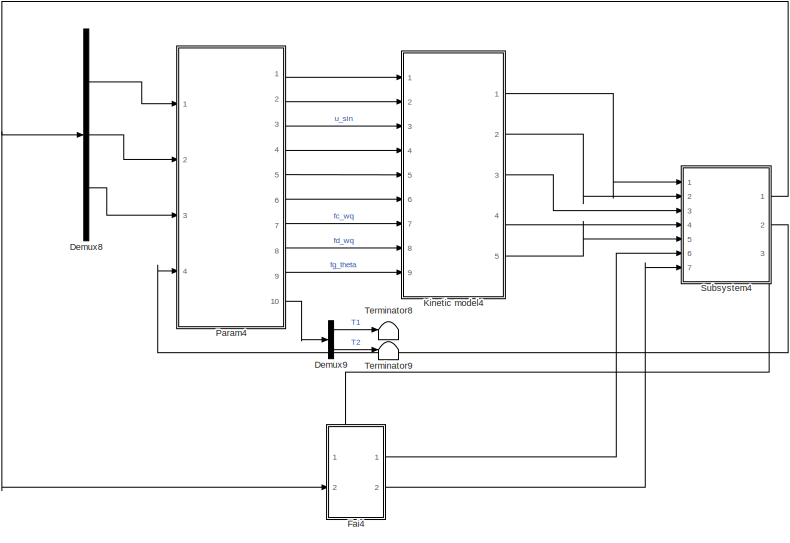
[diagram: root canvas - part 1/5, top center region]
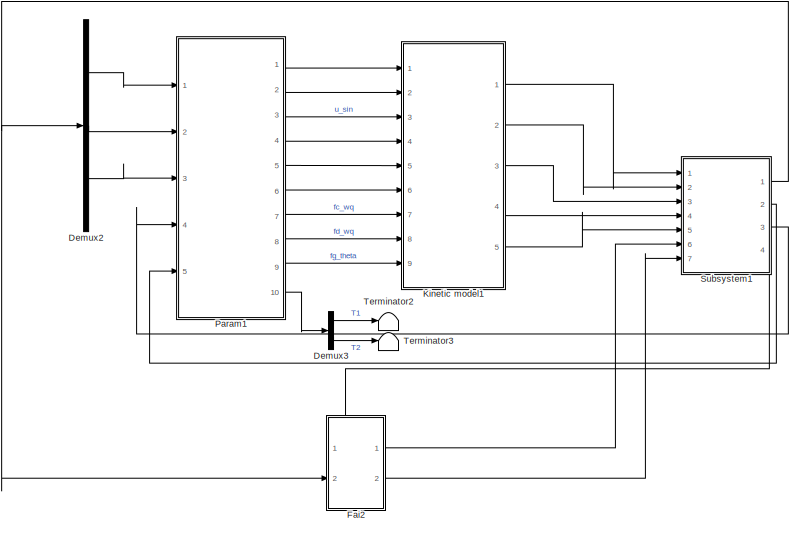
[diagram: root canvas - part 2/5, top left region]
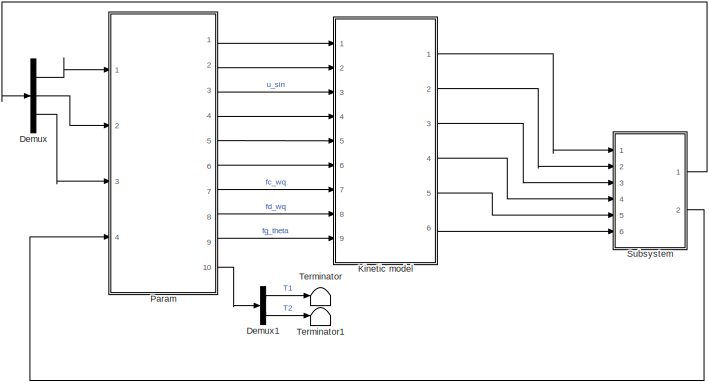
[diagram: root canvas - part 3/5, top left region]
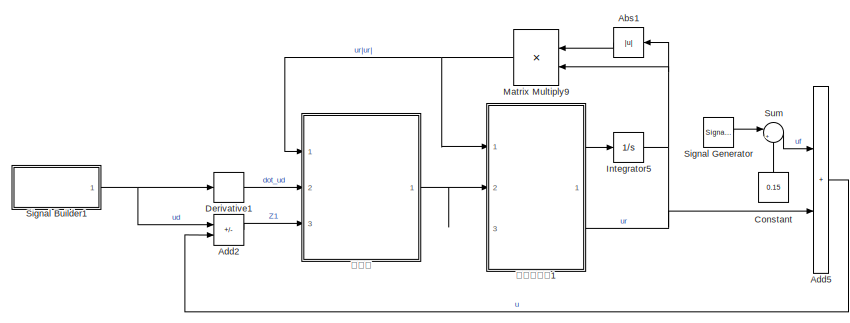
[diagram: root canvas - part 4/5, top right region]
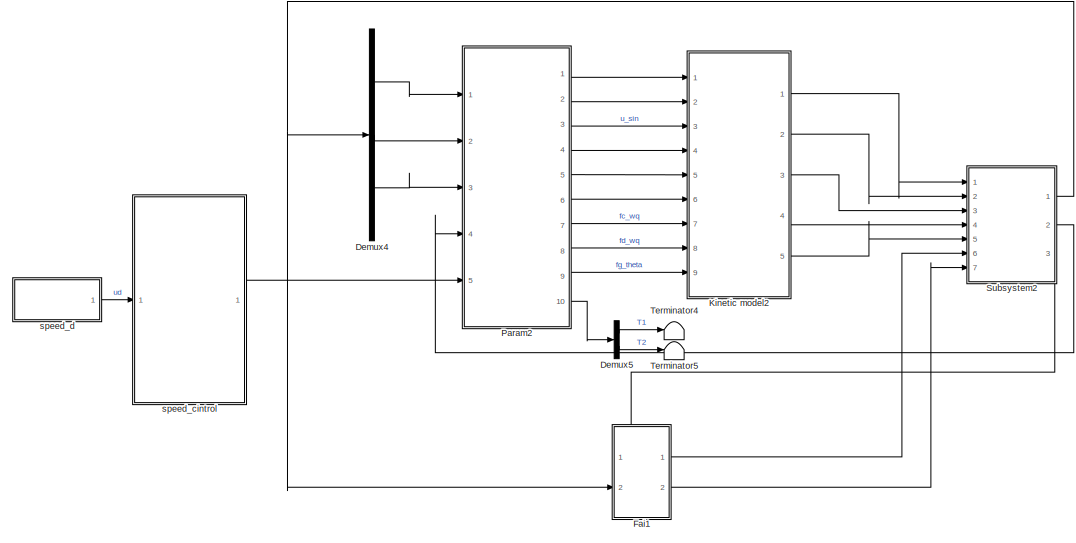
[diagram: root canvas - part 5/5, bottom center region]
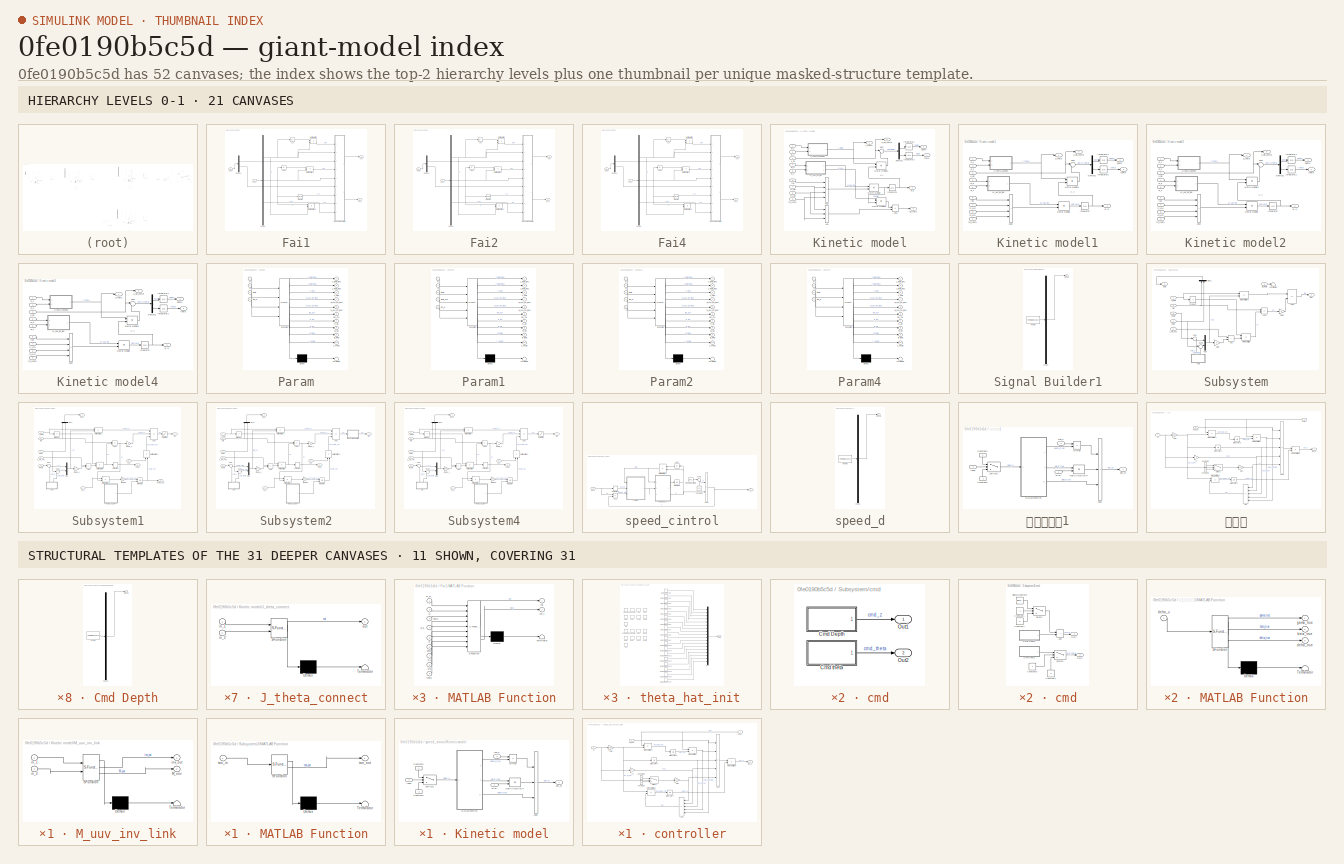
[diagram: thumbnail index - top-2 hierarchy levels (21 canvases) + 11 structural-template representatives of the remaining 31 canvases]
MODEL slx_0fe0190b5c5d
KIND model
CONFIG AbsTol = auto
CONFIG EnableMultiTasking = off
CONFIG FixedStep = 0.1
CONFIG MaxStep = auto
CONFIG MinStep = auto
CONFIG RelTol = 1e-3
CONFIG SampleTimeConstraint = Unconstrained
CONFIG SolverName = ode1
CONFIG StartTime = 0
CONFIG StopTime = 1000
BLOCK [Abs] Abs1
  Commented = on
  NameLocation = top
  SaturateOnIntegerOverflow = off
BLOCK [Sum] Add2
  Commented = on
  IconShape = rectangular
  Inputs = -+
  Ports = [2, 1]
BLOCK [Sum] Add5
  Commented = on
  IconShape = rectangular
  Ports = [2, 1]
BLOCK [Constant] Constant
  Commented = on
  NameLocation = right
  Value = 0.15
BLOCK [Demux] Demux
  Commented = on
  Outputs = 3
  Ports = [1, 3]
BLOCK [Demux] Demux1
  Commented = on
  Outputs = 2
  Ports = [1, 2]
BLOCK [Demux] Demux2
  Commented = on
  Outputs = 3
  Ports = [1, 3]
BLOCK [Demux] Demux3
  Commented = on
  Outputs = 2
  Ports = [1, 2]
BLOCK [Demux] Demux4
  Outputs = 3
  Ports = [1, 3]
BLOCK [Demux] Demux5
  Outputs = 2
  Ports = [1, 2]
BLOCK [Demux] Demux8
  Commented = on
  Outputs = 3
  Ports = [1, 3]
BLOCK [Demux] Demux9
  Commented = on
  Outputs = 2
  Ports = [1, 2]
BLOCK [Derivative] Derivative1
  Commented = on
BLOCK [SubSystem] Fai1
  Ports = [2, 2]
  RequestExecContextInheritance = off
BLOCK [Abs] Fai1/Abs
  SaturateOnIntegerOverflow = off
BLOCK [Abs] Fai1/Abs1
  SaturateOnIntegerOverflow = off
BLOCK [Demux] Fai1/Demux
  Outputs = 3
  Ports = [1, 3]
BLOCK [Demux] Fai1/Demux1
  Outputs = 2
  Ports = [1, 2]
BLOCK [Outport] Fai1/Fai
BLOCK [Outport] Fai1/Fai_t
  Port = 2
BLOCK [Inport] Fai1/Input
  Port = 2
BLOCK [SubSystem] Fai1/MATLAB Function
  ErrorFcn = Stateflow.Translate.translate
  PermitHierarchicalResolution = ExplicitOnly
  Ports = [9, 2]
  RequestExecContextInheritance = off
  SFBlockType = MATLAB Function
  TreatAsAtomicUnit = on
BLOCK [Demux] Fai1/MATLAB Function/ Demux 
  Outputs = 1
  Ports = [1, 1]
BLOCK [S-Function] Fai1/MATLAB Function/ SFunction 
  EnableBusSupport = on
  FunctionName = sf_sfun
  PortCounts = [9 3]
  Ports = [9, 3]
  SFcnIsStateOwnerBlock = off
  SFunctionDeploymentMode = off
  Tag = Stateflow S-Function 8
BLOCK [Terminator] Fai1/MATLAB Function/ Terminator 
BLOCK [Outport] Fai1/MATLAB Function/Fai
BLOCK [Outport] Fai1/MATLAB Function/Fai_t
  Port = 2
BLOCK [Inport] Fai1/MATLAB Function/dotq
  Port = 6
BLOCK [Inport] Fai1/MATLAB Function/dotw
  Port = 3
BLOCK [Inport] Fai1/MATLAB Function/q
  Port = 5
BLOCK [Inport] Fai1/MATLAB Function/q_2
  Port = 7
BLOCK [Inport] Fai1/MATLAB Function/q_q_
  Port = 4
BLOCK [Inport] Fai1/MATLAB Function/theta
  Port = 9
BLOCK [Inport] Fai1/MATLAB Function/w
  Port = 2
BLOCK [Inport] Fai1/MATLAB Function/w_w_
BLOCK [Inport] Fai1/MATLAB Function/wq
  Port = 8
BLOCK [Product] Fai1/Matrix Multiply
  Multiplication = Matrix(*)
  Ports = [2, 1]
BLOCK [Product] Fai1/Matrix Multiply1
  Multiplication = Matrix(*)
  Ports = [2, 1]
BLOCK [Product] Fai1/Matrix Multiply2
  Multiplication = Matrix(*)
  Ports = [2, 1]
BLOCK [Math] Fai1/Square
  Operator = square
  Ports = [1, 1]
BLOCK [Inport] Fai1/dota1
BLOCK [SubSystem] Fai2
  Commented = on
  Ports = [2, 2]
  RequestExecContextInheritance = off
BLOCK [Abs] Fai2/Abs
  SaturateOnIntegerOverflow = off
BLOCK [Abs] Fai2/Abs1
  SaturateOnIntegerOverflow = off
BLOCK [Demux] Fai2/Demux
  Outputs = 3
  Ports = [1, 3]
BLOCK [Demux] Fai2/Demux1
  Outputs = 2
  Ports = [1, 2]
BLOCK [Outport] Fai2/Fai
BLOCK [Outport] Fai2/Fai_t
  Port = 2
BLOCK [Inport] Fai2/Input
  Port = 2
BLOCK [SubSystem] Fai2/MATLAB Function
  ErrorFcn = Stateflow.Translate.translate
  PermitHierarchicalResolution = ExplicitOnly
  Ports = [9, 2]
  RequestExecContextInheritance = off
  SFBlockType = MATLAB Function
  TreatAsAtomicUnit = on
BLOCK [Demux] Fai2/MATLAB Function/ Demux 
  Outputs = 1
  Ports = [1, 1]
BLOCK [S-Function] Fai2/MATLAB Function/ SFunction 
  EnableBusSupport = on
  FunctionName = sf_sfun
  PortCounts = [9 3]
  Ports = [9, 3]
  SFcnIsStateOwnerBlock = off
  SFunctionDeploymentMode = off
  Tag = Stateflow S-Function 4
BLOCK [Terminator] Fai2/MATLAB Function/ Terminator 
BLOCK [Outport] Fai2/MATLAB Function/Fai
BLOCK [Outport] Fai2/MATLAB Function/Fai_t
  Port = 2
BLOCK [Inport] Fai2/MATLAB Function/dotq
  Port = 6
BLOCK [Inport] Fai2/MATLAB Function/dotw
  Port = 3
BLOCK [Inport] Fai2/MATLAB Function/q
  Port = 5
BLOCK [Inport] Fai2/MATLAB Function/q_2
  Port = 7
BLOCK [Inport] Fai2/MATLAB Function/q_q_
  Port = 4
BLOCK [Inport] Fai2/MATLAB Function/theta
  Port = 9
BLOCK [Inport] Fai2/MATLAB Function/w
  Port = 2
BLOCK [Inport] Fai2/MATLAB Function/w_w_
BLOCK [Inport] Fai2/MATLAB Function/wq
  Port = 8
BLOCK [Product] Fai2/Matrix Multiply
  Multiplication = Matrix(*)
  Ports = [2, 1]
BLOCK [Product] Fai2/Matrix Multiply1
  Multiplication = Matrix(*)
  Ports = [2, 1]
BLOCK [Product] Fai2/Matrix Multiply2
  Multiplication = Matrix(*)
  Ports = [2, 1]
BLOCK [Math] Fai2/Square
  Operator = square
  Ports = [1, 1]
BLOCK [Inport] Fai2/dota1
BLOCK [SubSystem] Fai4
  Commented = on
  Ports = [2, 2]
  RequestExecContextInheritance = off
BLOCK [Abs] Fai4/Abs
  SaturateOnIntegerOverflow = off
BLOCK [Abs] Fai4/Abs1
  SaturateOnIntegerOverflow = off
BLOCK [Demux] Fai4/Demux
  Outputs = 3
  Ports = [1, 3]
BLOCK [Demux] Fai4/Demux1
  Outputs = 2
  Ports = [1, 2]
BLOCK [Outport] Fai4/Fai
BLOCK [Outport] Fai4/Fai_t
  Port = 2
BLOCK [Inport] Fai4/Input
  Port = 2
BLOCK [SubSystem] Fai4/MATLAB Function
  ErrorFcn = Stateflow.Translate.translate
  PermitHierarchicalResolution = ExplicitOnly
  Ports = [9, 2]
  RequestExecContextInheritance = off
  SFBlockType = MATLAB Function
  TreatAsAtomicUnit = on
BLOCK [Demux] Fai4/MATLAB Function/ Demux 
  Outputs = 1
  Ports = [1, 1]
BLOCK [S-Function] Fai4/MATLAB Function/ SFunction 
  EnableBusSupport = on
  FunctionName = sf_sfun
  PortCounts = [9 3]
  Ports = [9, 3]
  SFcnIsStateOwnerBlock = off
  SFunctionDeploymentMode = off
  Tag = Stateflow S-Function 16
BLOCK [Terminator] Fai4/MATLAB Function/ Terminator 
BLOCK [Outport] Fai4/MATLAB Function/Fai
BLOCK [Outport] Fai4/MATLAB Function/Fai_t
  Port = 2
BLOCK [Inport] Fai4/MATLAB Function/dotq
  Port = 6
BLOCK [Inport] Fai4/MATLAB Function/dotw
  Port = 3
BLOCK [Inport] Fai4/MATLAB Function/q
  Port = 5
BLOCK [Inport] Fai4/MATLAB Function/q_2
  Port = 7
BLOCK [Inport] Fai4/MATLAB Function/q_q_
  Port = 4
BLOCK [Inport] Fai4/MATLAB Function/theta
  Port = 9
BLOCK [Inport] Fai4/MATLAB Function/w
  Port = 2
BLOCK [Inport] Fai4/MATLAB Function/w_w_
BLOCK [Inport] Fai4/MATLAB Function/wq
  Port = 8
BLOCK [Product] Fai4/Matrix Multiply
  Multiplication = Matrix(*)
  Ports = [2, 1]
BLOCK [Product] Fai4/Matrix Multiply1
  Multiplication = Matrix(*)
  Ports = [2, 1]
BLOCK [Product] Fai4/Matrix Multiply2
  Multiplication = Matrix(*)
  Ports = [2, 1]
BLOCK [Math] Fai4/Square
  Operator = square
  Ports = [1, 1]
BLOCK [Inport] Fai4/dota1
BLOCK [Integrator] Integrator5
  Commented = on
  Ports = [1, 1]
BLOCK [SubSystem] Kinetic model
  Commented = on
  Ports = [9, 6]
  RequestExecContextInheritance = off
BLOCK [Sum] Kinetic model/Add
  IconShape = rectangular
  Inputs = +++
  Ports = [3, 1]
BLOCK [Sum] Kinetic model/Add1
  IconShape = rectangular
  Inputs = +-
  Ports = [2, 1]
BLOCK [Sum] Kinetic model/Add2
  IconShape = rectangular
  Inputs = ++++
  Ports = [4, 1]
BLOCK [Demux] Kinetic model/Demux1
  Outputs = 2
  Ports = [1, 2]
BLOCK [Integrator] Kinetic model/Integrator
  Ports = [1, 1]
BLOCK [Integrator] Kinetic model/Integrator1
  Ports = [1, 1]
BLOCK [Integrator] Kinetic model/Integrator2
  Ports = [1, 1]
BLOCK [Outport] Kinetic model/J_theta
BLOCK [SubSystem] Kinetic model/J_theta_connect
  ErrorFcn = Stateflow.Translate.translate
  PermitHierarchicalResolution = ExplicitOnly
  Ports = [2, 1]
  RequestExecContextInheritance = off
  SFBlockType = MATLAB Function
  TreatAsAtomicUnit = on
BLOCK [Demux] Kinetic model/J_theta_connect/ Demux 
  Outputs = 1
  Ports = [1, 1]
BLOCK [S-Function] Kinetic model/J_theta_connect/ SFunction 
  EnableBusSupport = on
  FunctionName = sf_sfun
  PortCounts = [2 2]
  Ports = [2, 2]
  SFcnIsStateOwnerBlock = off
  SFunctionDeploymentMode = off
  Tag = Stateflow S-Function 1
BLOCK [Terminator] Kinetic model/J_theta_connect/ Terminator 
BLOCK [Inport] Kinetic model/J_theta_connect/in_1
BLOCK [Inport] Kinetic model/J_theta_connect/in_2
  Port = 2
BLOCK [Outport] Kinetic model/J_theta_connect/out
BLOCK [SubSystem] Kinetic model/M_uuv_inv_link
  ErrorFcn = Stateflow.Translate.translate
  PermitHierarchicalResolution = ExplicitOnly
  Ports = [2, 2]
  RequestExecContextInheritance = off
  SFBlockType = MATLAB Function
  TreatAsAtomicUnit = on
BLOCK [Demux] Kinetic model/M_uuv_inv_link/ Demux 
  Outputs = 1
  Ports = [1, 1]
BLOCK [S-Function] Kinetic model/M_uuv_inv_link/ SFunction 
  EnableBusSupport = on
  FunctionName = sf_sfun
  PortCounts = [2 3]
  Ports = [2, 3]
  SFcnIsStateOwnerBlock = off
  SFunctionDeploymentMode = off
  Tag = Stateflow S-Function 3
BLOCK [Terminator] Kinetic model/M_uuv_inv_link/ Terminator 
BLOCK [Outport] Kinetic model/M_uuv_inv_link/M_uuv
  Port = 2
BLOCK [Inport] Kinetic model/M_uuv_inv_link/in_1
BLOCK [Inport] Kinetic model/M_uuv_inv_link/in_2
  Port = 2
BLOCK [Outport] Kinetic model/M_uuv_inv_link/inv_out
BLOCK [Product] Kinetic model/Matrix Multiply
  Multiplication = Matrix(*)
  Ports = [2, 1]
BLOCK [Product] Kinetic model/Matrix Multiply1
  Multiplication = Matrix(*)
  Ports = [2, 1]
BLOCK [Product] Kinetic model/Matrix Multiply2
  Multiplication = Matrix(*)
  Ports = [2, 1]
BLOCK [Sum] Kinetic model/Sum
  Inputs = |-+
  Ports = [2, 1]
BLOCK [Outport] Kinetic model/depth
  Port = 3
BLOCK [Outport] Kinetic model/fai_theta
  Port = 6
BLOCK [Inport] Kinetic model/fc_wq
  Port = 7
BLOCK [Inport] Kinetic model/fd_wq
  Port = 8
BLOCK [Inport] Kinetic model/fg_theta
  Port = 9
BLOCK [Inport] Kinetic model/in_1
BLOCK [Inport] Kinetic model/in_2
  Port = 2
BLOCK [Inport] Kinetic model/in_3
  Port = 4
BLOCK [Inport] Kinetic model/in_4
  Port = 5
BLOCK [Inport] Kinetic model/tao
  Port = 6
BLOCK [Outport] Kinetic model/theta
  Port = 4
BLOCK [Inport] Kinetic model/u_sin
  Port = 3
BLOCK [Outport] Kinetic model/u_sin_vector
  Port = 5
BLOCK [Outport] Kinetic model/w,q
  Port = 2
BLOCK [SubSystem] Kinetic model1
  Commented = on
  Ports = [9, 5]
  RequestExecContextInheritance = off
BLOCK [Sum] Kinetic model1/Add2
  IconShape = rectangular
  Inputs = ++++
  Ports = [4, 1]
BLOCK [Demux] Kinetic model1/Demux1
  Outputs = 2
  Ports = [1, 2]
BLOCK [Integrator] Kinetic model1/Integrator
  Ports = [1, 1]
BLOCK [Integrator] Kinetic model1/Integrator1
  Ports = [1, 1]
BLOCK [Integrator] Kinetic model1/Integrator2
  Ports = [1, 1]
BLOCK [Outport] Kinetic model1/J_theta
BLOCK [SubSystem] Kinetic model1/J_theta_connect
  ErrorFcn = Stateflow.Translate.translate
  PermitHierarchicalResolution = ExplicitOnly
  Ports = [2, 1]
  RequestExecContextInheritance = off
  SFBlockType = MATLAB Function
  TreatAsAtomicUnit = on
BLOCK [Demux] Kinetic model1/J_theta_connect/ Demux 
  Outputs = 1
  Ports = [1, 1]
BLOCK [S-Function] Kinetic model1/J_theta_connect/ SFunction 
  EnableBusSupport = on
  FunctionName = sf_sfun
  PortCounts = [2 2]
  Ports = [2, 2]
  SFcnIsStateOwnerBlock = off
  SFunctionDeploymentMode = off
  Tag = Stateflow S-Function 5
BLOCK [Terminator] Kinetic model1/J_theta_connect/ Terminator 
BLOCK [Inport] Kinetic model1/J_theta_connect/in_1
BLOCK [Inport] Kinetic model1/J_theta_connect/in_2
  Port = 2
BLOCK [Outport] Kinetic model1/J_theta_connect/out
BLOCK [SubSystem] Kinetic model1/M_uuv_inv_link
  ErrorFcn = Stateflow.Translate.translate
  PermitHierarchicalResolution = ExplicitOnly
  Ports = [2, 1]
  RequestExecContextInheritance = off
  SFBlockType = MATLAB Function
  TreatAsAtomicUnit = on
BLOCK [Demux] Kinetic model1/M_uuv_inv_link/ Demux 
  Outputs = 1
  Ports = [1, 1]
BLOCK [S-Function] Kinetic model1/M_uuv_inv_link/ SFunction 
  EnableBusSupport = on
  FunctionName = sf_sfun
  PortCounts = [2 2]
  Ports = [2, 2]
  SFcnIsStateOwnerBlock = off
  SFunctionDeploymentMode = off
  Tag = Stateflow S-Function 6
BLOCK [Terminator] Kinetic model1/M_uuv_inv_link/ Terminator 
BLOCK [Inport] Kinetic model1/M_uuv_inv_link/in_1
BLOCK [Inport] Kinetic model1/M_uuv_inv_link/in_2
  Port = 2
BLOCK [Outport] Kinetic model1/M_uuv_inv_link/inv_out
BLOCK [Product] Kinetic model1/Matrix Multiply
  Multiplication = Matrix(*)
  Ports = [2, 1]
BLOCK [Product] Kinetic model1/Matrix Multiply1
  Multiplication = Matrix(*)
  Ports = [2, 1]
BLOCK [Sum] Kinetic model1/Sum
  Inputs = |-+
  Ports = [2, 1]
BLOCK [Outport] Kinetic model1/depth
  Port = 3
BLOCK [Inport] Kinetic model1/fc_wq
  Port = 7
BLOCK [Inport] Kinetic model1/fd_wq
  Port = 8
BLOCK [Inport] Kinetic model1/fg_theta
  Port = 9
BLOCK [Inport] Kinetic model1/in_1
BLOCK [Inport] Kinetic model1/in_2
  Port = 2
BLOCK [Inport] Kinetic model1/in_3
  Port = 4
BLOCK [Inport] Kinetic model1/in_4
  Port = 5
BLOCK [Inport] Kinetic model1/tao
  Port = 6
BLOCK [Outport] Kinetic model1/theta
  Port = 4
BLOCK [Inport] Kinetic model1/u_sin
  Port = 3
BLOCK [Outport] Kinetic model1/u_sin_vector
  Port = 5
BLOCK [Outport] Kinetic model1/w,q
  Port = 2
BLOCK [SubSystem] Kinetic model2
  Ports = [9, 5]
  RequestExecContextInheritance = off
BLOCK [Sum] Kinetic model2/Add2
  IconShape = rectangular
  Inputs = ++++
  Ports = [4, 1]
BLOCK [Demux] Kinetic model2/Demux1
  Outputs = 2
  Ports = [1, 2]
BLOCK [Integrator] Kinetic model2/Integrator
  Ports = [1, 1]
BLOCK [Integrator] Kinetic model2/Integrator1
  Ports = [1, 1]
BLOCK [Integrator] Kinetic model2/Integrator2
  Ports = [1, 1]
BLOCK [Outport] Kinetic model2/J_theta
BLOCK [SubSystem] Kinetic model2/J_theta_connect
  ErrorFcn = Stateflow.Translate.translate
  PermitHierarchicalResolution = ExplicitOnly
  Ports = [2, 1]
  RequestExecContextInheritance = off
  SFBlockType = MATLAB Function
  TreatAsAtomicUnit = on
BLOCK [Demux] Kinetic model2/J_theta_connect/ Demux 
  Outputs = 1
  Ports = [1, 1]
BLOCK [S-Function] Kinetic model2/J_theta_connect/ SFunction 
  EnableBusSupport = on
  FunctionName = sf_sfun
  PortCounts = [2 2]
  Ports = [2, 2]
  SFcnIsStateOwnerBlock = off
  SFunctionDeploymentMode = off
  Tag = Stateflow S-Function 9
BLOCK [Terminator] Kinetic model2/J_theta_connect/ Terminator 
BLOCK [Inport] Kinetic model2/J_theta_connect/in_1
BLOCK [Inport] Kinetic model2/J_theta_connect/in_2
  Port = 2
BLOCK [Outport] Kinetic model2/J_theta_connect/out
BLOCK [SubSystem] Kinetic model2/M_uuv_inv_link
  ErrorFcn = Stateflow.Translate.translate
  PermitHierarchicalResolution = ExplicitOnly
  Ports = [2, 1]
  RequestExecContextInheritance = off
  SFBlockType = MATLAB Function
  TreatAsAtomicUnit = on
BLOCK [Demux] Kinetic model2/M_uuv_inv_link/ Demux 
  Outputs = 1
  Ports = [1, 1]
BLOCK [S-Function] Kinetic model2/M_uuv_inv_link/ SFunction 
  EnableBusSupport = on
  FunctionName = sf_sfun
  PortCounts = [2 2]
  Ports = [2, 2]
  SFcnIsStateOwnerBlock = off
  SFunctionDeploymentMode = off
  Tag = Stateflow S-Function 10
BLOCK [Terminator] Kinetic model2/M_uuv_inv_link/ Terminator 
BLOCK [Inport] Kinetic model2/M_uuv_inv_link/in_1
BLOCK [Inport] Kinetic model2/M_uuv_inv_link/in_2
  Port = 2
BLOCK [Outport] Kinetic model2/M_uuv_inv_link/inv_out
BLOCK [Product] Kinetic model2/Matrix Multiply
  Multiplication = Matrix(*)
  Ports = [2, 1]
BLOCK [Product] Kinetic model2/Matrix Multiply1
  Multiplication = Matrix(*)
  Ports = [2, 1]
BLOCK [Sum] Kinetic model2/Sum
  Inputs = |-+
  Ports = [2, 1]
BLOCK [Outport] Kinetic model2/depth
  Port = 3
BLOCK [Inport] Kinetic model2/fc_wq
  Port = 7
BLOCK [Inport] Kinetic model2/fd_wq
  Port = 8
BLOCK [Inport] Kinetic model2/fg_theta
  Port = 9
BLOCK [Inport] Kinetic model2/in_1
BLOCK [Inport] Kinetic model2/in_2
  Port = 2
BLOCK [Inport] Kinetic model2/in_3
  Port = 4
BLOCK [Inport] Kinetic model2/in_4
  Port = 5
BLOCK [Inport] Kinetic model2/tao
  Port = 6
BLOCK [Outport] Kinetic model2/theta
  Port = 4
BLOCK [Inport] Kinetic model2/u_sin
  Port = 3
BLOCK [Outport] Kinetic model2/u_sin_vector
  Port = 5
BLOCK [Outport] Kinetic model2/w,q
  Port = 2
BLOCK [SubSystem] Kinetic model4
  Commented = on
  Ports = [9, 5]
  RequestExecContextInheritance = off
BLOCK [Sum] Kinetic model4/Add2
  IconShape = rectangular
  Inputs = ++++
  Ports = [4, 1]
BLOCK [Demux] Kinetic model4/Demux1
  Outputs = 2
  Ports = [1, 2]
BLOCK [Integrator] Kinetic model4/Integrator
  Ports = [1, 1]
BLOCK [Integrator] Kinetic model4/Integrator1
  Ports = [1, 1]
BLOCK [Integrator] Kinetic model4/Integrator2
  Ports = [1, 1]
BLOCK [Outport] Kinetic model4/J_theta
BLOCK [SubSystem] Kinetic model4/J_theta_connect
  ErrorFcn = Stateflow.Translate.translate
  PermitHierarchicalResolution = ExplicitOnly
  Ports = [2, 1]
  RequestExecContextInheritance = off
  SFBlockType = MATLAB Function
  TreatAsAtomicUnit = on
BLOCK [Demux] Kinetic model4/J_theta_connect/ Demux 
  Outputs = 1
  Ports = [1, 1]
BLOCK [S-Function] Kinetic model4/J_theta_connect/ SFunction 
  EnableBusSupport = on
  FunctionName = sf_sfun
  PortCounts = [2 2]
  Ports = [2, 2]
  SFcnIsStateOwnerBlock = off
  SFunctionDeploymentMode = off
  Tag = Stateflow S-Function 17
BLOCK [Terminator] Kinetic model4/J_theta_connect/ Terminator 
BLOCK [Inport] Kinetic model4/J_theta_connect/in_1
BLOCK [Inport] Kinetic model4/J_theta_connect/in_2
  Port = 2
BLOCK [Outport] Kinetic model4/J_theta_connect/out
BLOCK [SubSystem] Kinetic model4/M_uuv_inv_link
  ErrorFcn = Stateflow.Translate.translate
  PermitHierarchicalResolution = ExplicitOnly
  Ports = [2, 1]
  RequestExecContextInheritance = off
  SFBlockType = MATLAB Function
  TreatAsAtomicUnit = on
BLOCK [Demux] Kinetic model4/M_uuv_inv_link/ Demux 
  Outputs = 1
  Ports = [1, 1]
BLOCK [S-Function] Kinetic model4/M_uuv_inv_link/ SFunction 
  EnableBusSupport = on
  FunctionName = sf_sfun
  PortCounts = [2 2]
  Ports = [2, 2]
  SFcnIsStateOwnerBlock = off
  SFunctionDeploymentMode = off
  Tag = Stateflow S-Function 18
BLOCK [Terminator] Kinetic model4/M_uuv_inv_link/ Terminator 
BLOCK [Inport] Kinetic model4/M_uuv_inv_link/in_1
BLOCK [Inport] Kinetic model4/M_uuv_inv_link/in_2
  Port = 2
BLOCK [Outport] Kinetic model4/M_uuv_inv_link/inv_out
BLOCK [Product] Kinetic model4/Matrix Multiply
  Multiplication = Matrix(*)
  Ports = [2, 1]
BLOCK [Product] Kinetic model4/Matrix Multiply1
  Multiplication = Matrix(*)
  Ports = [2, 1]
BLOCK [Sum] Kinetic model4/Sum
  Inputs = |-+
  Ports = [2, 1]
BLOCK [Outport] Kinetic model4/depth
  Port = 3
BLOCK [Inport] Kinetic model4/fc_wq
  Port = 7
BLOCK [Inport] Kinetic model4/fd_wq
  Port = 8
BLOCK [Inport] Kinetic model4/fg_theta
  Port = 9
BLOCK [Inport] Kinetic model4/in_1
BLOCK [Inport] Kinetic model4/in_2
  Port = 2
BLOCK [Inport] Kinetic model4/in_3
  Port = 4
BLOCK [Inport] Kinetic model4/in_4
  Port = 5
BLOCK [Inport] Kinetic model4/tao
  Port = 6
BLOCK [Outport] Kinetic model4/theta
  Port = 4
BLOCK [Inport] Kinetic model4/u_sin
  Port = 3
BLOCK [Outport] Kinetic model4/u_sin_vector
  Port = 5
BLOCK [Outport] Kinetic model4/w,q
  Port = 2
BLOCK [Product] Matrix Multiply9
  Commented = on
  Multiplication = Matrix(*)
  NameLocation = top
  Ports = [2, 1]
BLOCK [SubSystem] Param
  Commented = on
  ErrorFcn = Stateflow.Translate.translate
  PermitHierarchicalResolution = ExplicitOnly
  Ports = [4, 10]
  RequestExecContextInheritance = off
  SFBlockType = MATLAB Function
  TreatAsAtomicUnit = on
BLOCK [Demux] Param/ Demux 
  Outputs = 1
  Ports = [1, 1]
BLOCK [S-Function] Param/ SFunction 
  EnableBusSupport = on
  FunctionName = sf_sfun
  PortCounts = [4 11]
  Ports = [4, 11]
  SFcnIsStateOwnerBlock = off
  SFunctionDeploymentMode = off
  Tag = Stateflow S-Function 2
BLOCK [Terminator] Param/ Terminator 
BLOCK [Outport] Param/J_theta_line1
BLOCK [Outport] Param/J_theta_line2
  Port = 2
BLOCK [Outport] Param/M_uuv_inv_line1
  Port = 4
BLOCK [Outport] Param/M_uuv_inv_line2
  Port = 5
BLOCK [Outport] Param/T_vector
  Port = 10
BLOCK [Outport] Param/fc_wq
  Port = 7
BLOCK [Outport] Param/fd_wq
  Port = 8
BLOCK [Outport] Param/fg_theta
  Port = 9
BLOCK [Inport] Param/q
  Port = 2
BLOCK [Inport] Param/tao_in
  Port = 4
BLOCK [Outport] Param/tao_out
  Port = 6
BLOCK [Inport] Param/theta
  Port = 3
BLOCK [Outport] Param/u_sind
  Port = 3
BLOCK [Inport] Param/w
BLOCK [SubSystem] Param1
  Commented = on
  ErrorFcn = Stateflow.Translate.translate
  PermitHierarchicalResolution = ExplicitOnly
  Ports = [5, 10]
  RequestExecContextInheritance = off
  SFBlockType = MATLAB Function
  TreatAsAtomicUnit = on
BLOCK [Demux] Param1/ Demux 
  Outputs = 1
  Ports = [1, 1]
BLOCK [S-Function] Param1/ SFunction 
  EnableBusSupport = on
  FunctionName = sf_sfun
  PortCounts = [5 11]
  Ports = [5, 11]
  SFcnIsStateOwnerBlock = off
  SFunctionDeploymentMode = off
  Tag = Stateflow S-Function 7
BLOCK [Terminator] Param1/ Terminator 
BLOCK [Outport] Param1/J_theta_line1
BLOCK [Outport] Param1/J_theta_line2
  Port = 2
BLOCK [Outport] Param1/M_uuv_inv_line1
  Port = 4
BLOCK [Outport] Param1/M_uuv_inv_line2
  Port = 5
BLOCK [Outport] Param1/T_vector
  Port = 10
BLOCK [Outport] Param1/fc_wq
  Port = 7
BLOCK [Outport] Param1/fd_wq
  Port = 8
BLOCK [Outport] Param1/fg_theta
  Port = 9
BLOCK [Inport] Param1/q
  Port = 2
BLOCK [Inport] Param1/tao_in
  Port = 5
BLOCK [Outport] Param1/tao_out
  Port = 6
BLOCK [Inport] Param1/theta
  Port = 3
BLOCK [Inport] Param1/theta_hat
  Port = 4
BLOCK [Outport] Param1/u_sind
  Port = 3
BLOCK [Inport] Param1/w
BLOCK [SubSystem] Param2
  ErrorFcn = Stateflow.Translate.translate
  PermitHierarchicalResolution = ExplicitOnly
  Ports = [5, 10]
  RequestExecContextInheritance = off
  SFBlockType = MATLAB Function
  TreatAsAtomicUnit = on
BLOCK [Demux] Param2/ Demux 
  Outputs = 1
  Ports = [1, 1]
BLOCK [S-Function] Param2/ SFunction 
  EnableBusSupport = on
  FunctionName = sf_sfun
  PortCounts = [5 11]
  Ports = [5, 11]
  SFcnIsStateOwnerBlock = off
  SFunctionDeploymentMode = off
  Tag = Stateflow S-Function 11
BLOCK [Terminator] Param2/ Terminator 
BLOCK [Outport] Param2/J_theta_line1
BLOCK [Outport] Param2/J_theta_line2
  Port = 2
BLOCK [Outport] Param2/M_uuv_inv_line1
  Port = 4
BLOCK [Outport] Param2/M_uuv_inv_line2
  Port = 5
BLOCK [Outport] Param2/T_vector
  Port = 10
BLOCK [Outport] Param2/fc_wq
  Port = 7
BLOCK [Outport] Param2/fd_wq
  Port = 8
BLOCK [Outport] Param2/fg_theta
  Port = 9
BLOCK [Inport] Param2/q
  Port = 2
BLOCK [Inport] Param2/tao_in
  Port = 4
BLOCK [Outport] Param2/tao_out
  Port = 6
BLOCK [Inport] Param2/theta
  Port = 3
BLOCK [Inport] Param2/u
  Port = 5
BLOCK [Outport] Param2/u_sind
  Port = 3
BLOCK [Inport] Param2/w
BLOCK [SubSystem] Param4
  Commented = on
  ErrorFcn = Stateflow.Translate.translate
  PermitHierarchicalResolution = ExplicitOnly
  Ports = [4, 10]
  RequestExecContextInheritance = off
  SFBlockType = MATLAB Function
  TreatAsAtomicUnit = on
BLOCK [Demux] Param4/ Demux 
  Outputs = 1
  Ports = [1, 1]
BLOCK [S-Function] Param4/ SFunction 
  EnableBusSupport = on
  FunctionName = sf_sfun
  PortCounts = [4 11]
  Ports = [4, 11]
  SFcnIsStateOwnerBlock = off
  SFunctionDeploymentMode = off
  Tag = Stateflow S-Function 19
BLOCK [Terminator] Param4/ Terminator 
BLOCK [Outport] Param4/J_theta_line1
BLOCK [Outport] Param4/J_theta_line2
  Port = 2
BLOCK [Outport] Param4/M_uuv_inv_line1
  Port = 4
BLOCK [Outport] Param4/M_uuv_inv_line2
  Port = 5
BLOCK [Outport] Param4/T_vector
  Port = 10
BLOCK [Outport] Param4/fc_wq
  Port = 7
BLOCK [Outport] Param4/fd_wq
  Port = 8
BLOCK [Outport] Param4/fg_theta
  Port = 9
BLOCK [Inport] Param4/q
  Port = 2
BLOCK [Inport] Param4/tao_in
  Port = 4
BLOCK [Outport] Param4/tao_out
  Port = 6
BLOCK [Inport] Param4/theta
  Port = 3
BLOCK [Outport] Param4/u_sind
  Port = 3
BLOCK [Inport] Param4/w
BLOCK [SubSystem] Signal Builder1
  ClipboardFcn = sigbuilder_block('clipboard');
  CloseFcn = sigbuilder_block('close');
  Commented = on
  ContinueFcn = sigbuilder_block('continue');
  CopyFcn = sigbuilder_block('copy');
  DeleteFcn = sigbuilder_block('delete');
  LoadFcn = sigbuilder_block('load');
  MaskHideContents = on
  ModelCloseFcn = sigbuilder_block('modelClose');
  NameChangeFcn = sigbuilder_block('namechange');
  OpenFcn = sigbuilder_block('open',[437.6 199.2 550.4 400 ]);
  PauseFcn = sigbuilder_block('pause');
  Ports = [0, 1]
  PreSaveFcn = sigbuilder_block('preSave');
  RequestExecContextInheritance = off
  StartFcn = sigbuilder_block('start');
  StopFcn = sigbuilder_block('stop');
  Tag = STV Subsys
BLOCK [Demux] Signal Builder1/Demux
  DisplayOption = none
  Outputs = 1
  Ports = [1, 1]
  Tag = STV Demux
BLOCK [FromWorkspace] Signal Builder1/FromWs
  Tag = STV FromWs
  VariableName = tuvar
BLOCK [Outport] Signal Builder1/Signal 1
  Tag = STV Outport
BLOCK [SignalGenerator] Signal Generator
  Amplitude = 0.2
  Commented = on
  Frequency = 0.0143
  Ports = [0, 1]
BLOCK [SubSystem] Subsystem
  Commented = on
  Ports = [6, 2]
  RequestExecContextInheritance = off
BLOCK [Sum] Subsystem/Add
  IconShape = rectangular
  Ports = [2, 1]
BLOCK [Sum] Subsystem/Add1
  IconShape = rectangular
  Inputs = +-
  Ports = [2, 1]
BLOCK [Sum] Subsystem/Add2
  IconShape = rectangular
  Inputs = --
  Ports = [2, 1]
BLOCK [Gain] Subsystem/Gain
  Gain = -1
BLOCK [Gain] Subsystem/Gain1
  Gain = 5
BLOCK [Inport] Subsystem/J_theta
BLOCK [Product] Subsystem/Matrix Multiply
  Multiplication = Matrix(*)
  Ports = [2, 1]
BLOCK [Product] Subsystem/Matrix Multiply1
  Multiplication = Matrix(*)
  Ports = [2, 1]
BLOCK [Mux] Subsystem/Mux
  DisplayOption = bar
  Inputs = 2
  Ports = [2, 1]
BLOCK [Mux] Subsystem/Mux1
  DisplayOption = bar
  Inputs = 2
  NameLocation = right
  Ports = [2, 1]
BLOCK [Outport] Subsystem/Out1
BLOCK [Product] Subsystem/Product
  Inputs = /
  Multiplication = Matrix(*)
  Ports = [1, 1]
BLOCK [Sum] Subsystem/Sum
  Inputs = |+-
  Ports = [2, 1]
BLOCK [Sum] Subsystem/Sum1
  Inputs = |+-
  Ports = [2, 1]
BLOCK [Terminator] Subsystem/Terminator
BLOCK [SubSystem] Subsystem/cmd
  NameLocation = right
  Ports = [0, 2]
  RequestExecContextInheritance = off
BLOCK [SubSystem] Subsystem/cmd/Cmd Depth
  ClipboardFcn = sigbuilder_block('clipboard');
  CloseFcn = sigbuilder_block('close');
  ContinueFcn = sigbuilder_block('continue');
  CopyFcn = sigbuilder_block('copy');
  DeleteFcn = sigbuilder_block('delete');
  LoadFcn = sigbuilder_block('load');
  MaskHideContents = on
  ModelCloseFcn = sigbuilder_block('modelClose');
  NameChangeFcn = sigbuilder_block('namechange');
  OpenFcn = sigbuilder_block('open',[238.2 69 550.8 375 ]);
  PauseFcn = sigbuilder_block('pause');
  Ports = [0, 1]
  PreSaveFcn = sigbuilder_block('preSave');
  RequestExecContextInheritance = off
  StartFcn = sigbuilder_block('start');
  StopFcn = sigbuilder_block('stop');
  Tag = STV Subsys
BLOCK [Demux] Subsystem/cmd/Cmd Depth/Demux
  DisplayOption = none
  Outputs = 1
  Ports = [1, 1]
  Tag = STV Demux
BLOCK [FromWorkspace] Subsystem/cmd/Cmd Depth/FromWs
  Tag = STV FromWs
  VariableName = tuvar
BLOCK [Outport] Subsystem/cmd/Cmd Depth/Signal 1
  Tag = STV Outport
BLOCK [SubSystem] Subsystem/cmd/Cmd theta
  ClipboardFcn = sigbuilder_block('clipboard');
  CloseFcn = sigbuilder_block('close');
  ContinueFcn = sigbuilder_block('continue');
  CopyFcn = sigbuilder_block('copy');
  DeleteFcn = sigbuilder_block('delete');
  LoadFcn = sigbuilder_block('load');
  MaskHideContents = on
  ModelCloseFcn = sigbuilder_block('modelClose');
  NameChangeFcn = sigbuilder_block('namechange');
  OpenFcn = sigbuilder_block('open',[589.2 96.6 550.8 400.8 ]);
  PauseFcn = sigbuilder_block('pause');
  Ports = [0, 1]
  PreSaveFcn = sigbuilder_block('preSave');
  RequestExecContextInheritance = off
  StartFcn = sigbuilder_block('start');
  StopFcn = sigbuilder_block('stop');
  Tag = STV Subsys
BLOCK [Demux] Subsystem/cmd/Cmd theta/Demux
  DisplayOption = none
  Outputs = 1
  Ports = [1, 1]
  Tag = STV Demux
BLOCK [FromWorkspace] Subsystem/cmd/Cmd theta/FromWs
  Tag = STV FromWs
  VariableName = tuvar
BLOCK [Outport] Subsystem/cmd/Cmd theta/Signal 1
  Tag = STV Outport
BLOCK [Outport] Subsystem/cmd/Out1
BLOCK [Outport] Subsystem/cmd/Out2
  Port = 2
BLOCK [Inport] Subsystem/depth
  Port = 3
BLOCK [Inport] Subsystem/fai_theta
  Port = 6
BLOCK [Outport] Subsystem/tao
  Port = 2
BLOCK [Inport] Subsystem/theta
  Port = 4
BLOCK [Inport] Subsystem/u_sin_vet
  Port = 5
BLOCK [Inport] Subsystem/w;q
  Port = 2
BLOCK [SubSystem] Subsystem1
  Commented = on
  PortSchema = {"entries":[{"content":{"sides":[{"content":{"connectorIds":["In1","In2","In3","In4","In5","In6","In7"]},"type":"ConnectorPlacement.EquallySpacedRectSide","uuid":"5c5a44e6-8d8e-440f-9e7c-8dc2648a5aa2"},{"content":{"connectorIds":["Out1","Out2","Out3"],"side":"RIGHT"},"type":"ConnectorPlacement.EquallySpacedRectSide","uuid":"bbda16c8-79bf-4e81-8c5f-170a18e1caa9"},{"content":{"connectorIds":[],"side...<+440ch>
  Ports = [7, 4]
  RequestExecContextInheritance = off
BLOCK [Sum] Subsystem1/Add
  IconShape = rectangular
  Inputs = +-
  Ports = [2, 1]
BLOCK [Sum] Subsystem1/Add1
  IconShape = rectangular
  Inputs = +-
  Ports = [2, 1]
BLOCK [Sum] Subsystem1/Add2
  IconShape = rectangular
  Inputs = --+
  Ports = [3, 1]
BLOCK [Derivative] Subsystem1/Derivative
BLOCK [Inport] Subsystem1/Fai
  Port = 6
BLOCK [Inport] Subsystem1/Fai_t
  Port = 7
BLOCK [Gain] Subsystem1/Gama_1
  Gain = 2
BLOCK [Gain] Subsystem1/Gama_2
  Gain = 8
BLOCK [Outport] Subsystem1/Input
BLOCK [Integrator] Subsystem1/Integrator
  InitialConditionSource = external
  Ports = [2, 1]
BLOCK [Inport] Subsystem1/J_theta
BLOCK [Product] Subsystem1/Matrix Multiply
  Multiplication = Matrix(*)
  Ports = [2, 1]
BLOCK [Product] Subsystem1/Matrix Multiply1
  Multiplication = Matrix(*)
  Ports = [2, 1]
BLOCK [Product] Subsystem1/Matrix Multiply2
  Multiplication = Matrix(*)
  Ports = [2, 1]
BLOCK [Product] Subsystem1/Matrix Multiply3
  Multiplication = Matrix(*)
  NameLocation = right
  Ports = [2, 1]
BLOCK [Mux] Subsystem1/Mux
  DisplayOption = bar
  Inputs = 2
  Ports = [2, 1]
BLOCK [Mux] Subsystem1/Mux1
  DisplayOption = bar
  Inputs = 2
  NameLocation = right
  Ports = [2, 1]
BLOCK [Product] Subsystem1/Product
  Inputs = /
  Multiplication = Matrix(*)
  Ports = [1, 1]
BLOCK [Saturate] Subsystem1/Saturation
  LowerLimit = -100
  UpperLimit = 120
BLOCK [Sum] Subsystem1/Sum
  Inputs = |+-
  Ports = [2, 1]
BLOCK [Sum] Subsystem1/Sum1
  Inputs = |+-
  Ports = [2, 1]
BLOCK [Outport] Subsystem1/Theta_hat
  Port = 3
BLOCK [SubSystem] Subsystem1/cmd
  NameLocation = right
  Ports = [0, 2]
  RequestExecContextInheritance = off
BLOCK [SubSystem] Subsystem1/cmd/Cmd Depth
  ClipboardFcn = sigbuilder_block('clipboard');
  CloseFcn = sigbuilder_block('close');
  ContinueFcn = sigbuilder_block('continue');
  CopyFcn = sigbuilder_block('copy');
  DeleteFcn = sigbuilder_block('delete');
  LoadFcn = sigbuilder_block('load');
  MaskHideContents = on
  ModelCloseFcn = sigbuilder_block('modelClose');
  NameChangeFcn = sigbuilder_block('namechange');
  OpenFcn = sigbuilder_block('open',[238.2 69 550.8 375 ]);
  PauseFcn = sigbuilder_block('pause');
  Ports = [0, 1]
  PreSaveFcn = sigbuilder_block('preSave');
  RequestExecContextInheritance = off
  StartFcn = sigbuilder_block('start');
  StopFcn = sigbuilder_block('stop');
  Tag = STV Subsys
BLOCK [Demux] Subsystem1/cmd/Cmd Depth/Demux
  DisplayOption = none
  Outputs = 1
  Ports = [1, 1]
  Tag = STV Demux
BLOCK [FromWorkspace] Subsystem1/cmd/Cmd Depth/FromWs
  Tag = STV FromWs
  VariableName = tuvar
BLOCK [Outport] Subsystem1/cmd/Cmd Depth/Signal 1
  Tag = STV Outport
BLOCK [SubSystem] Subsystem1/cmd/Cmd theta
  ClipboardFcn = sigbuilder_block('clipboard');
  CloseFcn = sigbuilder_block('close');
  ContinueFcn = sigbuilder_block('continue');
  CopyFcn = sigbuilder_block('copy');
  DeleteFcn = sigbuilder_block('delete');
  LoadFcn = sigbuilder_block('load');
  MaskHideContents = on
  ModelCloseFcn = sigbuilder_block('modelClose');
  NameChangeFcn = sigbuilder_block('namechange');
  OpenFcn = sigbuilder_block('open',[313.2 49.2 550.8 400.8 ]);
  PauseFcn = sigbuilder_block('pause');
  Ports = [0, 1]
  PreSaveFcn = sigbuilder_block('preSave');
  RequestExecContextInheritance = off
  StartFcn = sigbuilder_block('start');
  StopFcn = sigbuilder_block('stop');
  Tag = STV Subsys
BLOCK [Demux] Subsystem1/cmd/Cmd theta/Demux
  DisplayOption = none
  Outputs = 1
  Ports = [1, 1]
  Tag = STV Demux
BLOCK [FromWorkspace] Subsystem1/cmd/Cmd theta/FromWs
  Tag = STV FromWs
  VariableName = tuvar
BLOCK [Outport] Subsystem1/cmd/Cmd theta/Signal 1
  Tag = STV Outport
BLOCK [Outport] Subsystem1/cmd/Out1
BLOCK [Outport] Subsystem1/cmd/Out2
  Port = 2
BLOCK [Inport] Subsystem1/depth
  Port = 3
BLOCK [Outport] Subsystem1/dota1
  Port = 4
BLOCK [Gain] Subsystem1/lambda
  Gain = -0.004
BLOCK [Outport] Subsystem1/tao
  Port = 2
BLOCK [Inport] Subsystem1/theta
  Port = 4
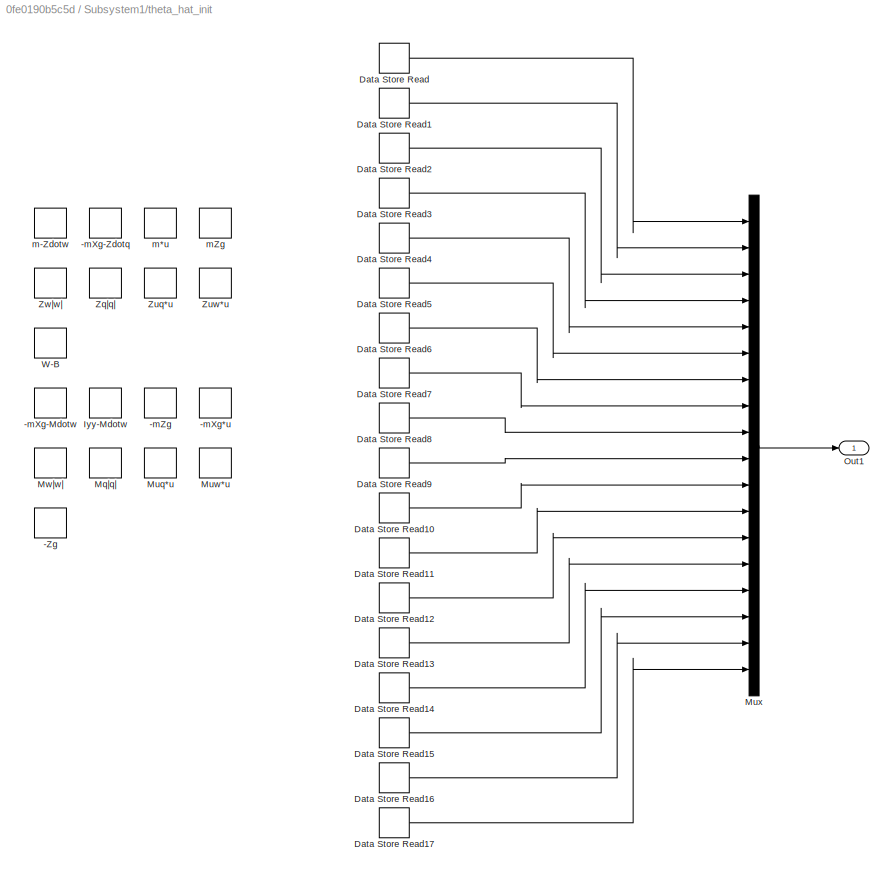
BLOCK [SubSystem] Subsystem1/theta_hat_init
  Ports = [0, 1]
  RequestExecContextInheritance = off
BLOCK [DataStoreMemory] Subsystem1/theta_hat_init/-Zg
  DataStoreName = fai_theta18
  InitialValue = -0.0196000000000000
  ReadBeforeWriteMsg = warning
  ShowAdditionalParam = off
  WriteAfterReadMsg = warning
  WriteAfterWriteMsg = warning
BLOCK [DataStoreMemory] Subsystem1/theta_hat_init/-mXg*u
  DataStoreName = fai_theta13
  ReadBeforeWriteMsg = warning
  ShowAdditionalParam = off
  WriteAfterReadMsg = warning
  WriteAfterWriteMsg = warning
BLOCK [DataStoreMemory] Subsystem1/theta_hat_init/-mXg-Mdotw
  DataStoreName = fai_theta10
  InitialValue = 1.93000000000000
  ReadBeforeWriteMsg = warning
  ShowAdditionalParam = off
  WriteAfterReadMsg = warning
  WriteAfterWriteMsg = warning
BLOCK [DataStoreMemory] Subsystem1/theta_hat_init/-mXg-Zdotq
  DataStoreName = fai_theta2
  InitialValue = 1.930000000000000
  ReadBeforeWriteMsg = warning
  ShowAdditionalParam = off
  WriteAfterReadMsg = warning
  WriteAfterWriteMsg = warning
BLOCK [DataStoreMemory] Subsystem1/theta_hat_init/-mZg
  DataStoreName = fai_theta12
  InitialValue = -0.597408000000000
  ReadBeforeWriteMsg = warning
  ShowAdditionalParam = off
  WriteAfterReadMsg = warning
  WriteAfterWriteMsg = warning
BLOCK [DataStoreRead] Subsystem1/theta_hat_init/Data Store Read
  DataStoreName = fai_theta1
  IndexOptions = Index vector (dialog)
  Indices = 1
  OutputSizes = 1
  Ports = [0, 1]
BLOCK [DataStoreRead] Subsystem1/theta_hat_init/Data Store Read1
  DataStoreName = fai_theta2
  IndexOptions = Index vector (dialog)
  Indices = 1
  OutputSizes = 1
  Ports = [0, 1]
BLOCK [DataStoreRead] Subsystem1/theta_hat_init/Data Store Read10
  DataStoreName = fai_theta11
  IndexOptions = Index vector (dialog)
  Indices = 1
  OutputSizes = 1
  Ports = [0, 1]
BLOCK [DataStoreRead] Subsystem1/theta_hat_init/Data Store Read11
  DataStoreName = fai_theta12
  IndexOptions = Index vector (dialog)
  Indices = 1
  OutputSizes = 1
  Ports = [0, 1]
BLOCK [DataStoreRead] Subsystem1/theta_hat_init/Data Store Read12
  DataStoreName = fai_theta13
  IndexOptions = Index vector (dialog)
  Indices = 1
  OutputSizes = 1
  Ports = [0, 1]
BLOCK [DataStoreRead] Subsystem1/theta_hat_init/Data Store Read13
  DataStoreName = fai_theta14
  IndexOptions = Index vector (dialog)
  Indices = 1
  OutputSizes = 1
  Ports = [0, 1]
BLOCK [DataStoreRead] Subsystem1/theta_hat_init/Data Store Read14
  DataStoreName = fai_theta15
  IndexOptions = Index vector (dialog)
  Indices = 1
  OutputSizes = 1
  Ports = [0, 1]
BLOCK [DataStoreRead] Subsystem1/theta_hat_init/Data Store Read15
  DataStoreName = fai_theta16
  IndexOptions = Index vector (dialog)
  Indices = 1
  OutputSizes = 1
  Ports = [0, 1]
BLOCK [DataStoreRead] Subsystem1/theta_hat_init/Data Store Read16
  DataStoreName = fai_theta17
  IndexOptions = Index vector (dialog)
  Indices = 1
  OutputSizes = 1
  Ports = [0, 1]
BLOCK [DataStoreRead] Subsystem1/theta_hat_init/Data Store Read17
  DataStoreName = fai_theta18
  IndexOptions = Index vector (dialog)
  Indices = 1
  OutputSizes = 1
  Ports = [0, 1]
BLOCK [DataStoreRead] Subsystem1/theta_hat_init/Data Store Read2
  DataStoreName = fai_theta3
  IndexOptions = Index vector (dialog)
  Indices = 1
  OutputSizes = 1
  Ports = [0, 1]
BLOCK [DataStoreRead] Subsystem1/theta_hat_init/Data Store Read3
  DataStoreName = fai_theta4
  IndexOptions = Index vector (dialog)
  Indices = 1
  OutputSizes = 1
  Ports = [0, 1]
BLOCK [DataStoreRead] Subsystem1/theta_hat_init/Data Store Read4
  DataStoreName = fai_theta5
  IndexOptions = Index vector (dialog)
  Indices = 1
  OutputSizes = 1
  Ports = [0, 1]
BLOCK [DataStoreRead] Subsystem1/theta_hat_init/Data Store Read5
  DataStoreName = fai_theta6
  IndexOptions = Index vector (dialog)
  Indices = 1
  OutputSizes = 1
  Ports = [0, 1]
BLOCK [DataStoreRead] Subsystem1/theta_hat_init/Data Store Read6
  DataStoreName = fai_theta7
  IndexOptions = Index vector (dialog)
  Indices = 1
  OutputSizes = 1
  Ports = [0, 1]
BLOCK [DataStoreRead] Subsystem1/theta_hat_init/Data Store Read7
  DataStoreName = fai_theta8
  IndexOptions = Index vector (dialog)
  Indices = 1
  OutputSizes = 1
  Ports = [0, 1]
BLOCK [DataStoreRead] Subsystem1/theta_hat_init/Data Store Read8
  DataStoreName = fai_theta9
  IndexOptions = Index vector (dialog)
  Indices = 1
  OutputSizes = 1
  Ports = [0, 1]
BLOCK [DataStoreRead] Subsystem1/theta_hat_init/Data Store Read9
  DataStoreName = fai_theta10
  IndexOptions = Index vector (dialog)
  Indices = 1
  OutputSizes = 1
  Ports = [0, 1]
BLOCK [DataStoreMemory] Subsystem1/theta_hat_init/Iyy-Mdotw
  DataStoreName = fai_theta11
  InitialValue = 8.330000000000000
  ReadBeforeWriteMsg = warning
  ShowAdditionalParam = off
  WriteAfterReadMsg = warning
  WriteAfterWriteMsg = warning
BLOCK [DataStoreMemory] Subsystem1/theta_hat_init/Mq|q|
  DataStoreName = fai_theta15
  InitialValue = -9.40000000000000
  ReadBeforeWriteMsg = warning
  ShowAdditionalParam = off
  WriteAfterReadMsg = warning
  WriteAfterWriteMsg = warning
BLOCK [DataStoreMemory] Subsystem1/theta_hat_init/Muq*u
  DataStoreName = fai_theta16
  InitialValue = -1
  ReadBeforeWriteMsg = warning
  ShowAdditionalParam = off
  WriteAfterReadMsg = warning
  WriteAfterWriteMsg = warning
BLOCK [DataStoreMemory] Subsystem1/theta_hat_init/Muw*u
  DataStoreName = fai_theta17
  InitialValue = 12
  ReadBeforeWriteMsg = warning
  ShowAdditionalParam = off
  WriteAfterReadMsg = warning
  WriteAfterWriteMsg = warning
BLOCK [Mux] Subsystem1/theta_hat_init/Mux
  DisplayOption = bar
  Inputs = 18
  Ports = [18, 1]
BLOCK [DataStoreMemory] Subsystem1/theta_hat_init/Mw|w|
  DataStoreName = fai_theta14
  InitialValue = 3.18000000000000
  ReadBeforeWriteMsg = warning
  ShowAdditionalParam = off
  WriteAfterReadMsg = warning
  WriteAfterWriteMsg = warning
BLOCK [Outport] Subsystem1/theta_hat_init/Out1
BLOCK [DataStoreMemory] Subsystem1/theta_hat_init/W-B
  DataStoreName = fai_theta9
  InitialValue = -9
  ReadBeforeWriteMsg = warning
  ShowAdditionalParam = off
  WriteAfterReadMsg = warning
  WriteAfterWriteMsg = warning
BLOCK [DataStoreMemory] Subsystem1/theta_hat_init/Zq|q|
  DataStoreName = fai_theta6
  InitialValue = -0.632000000000000
  ReadBeforeWriteMsg = warning
  ShowAdditionalParam = off
  WriteAfterReadMsg = warning
  WriteAfterWriteMsg = warning
BLOCK [DataStoreMemory] Subsystem1/theta_hat_init/Zuq*u
  DataStoreName = fai_theta7
  InitialValue = -2.61000000000000
  ReadBeforeWriteMsg = warning
  ShowAdditionalParam = off
  WriteAfterReadMsg = warning
  WriteAfterWriteMsg = warning
BLOCK [DataStoreMemory] Subsystem1/theta_hat_init/Zuw*u
  DataStoreName = fai_theta8
  InitialValue = -14.3000000000000
  ReadBeforeWriteMsg = warning
  ShowAdditionalParam = off
  WriteAfterReadMsg = warning
  WriteAfterWriteMsg = warning
BLOCK [DataStoreMemory] Subsystem1/theta_hat_init/Zw|w|
  DataStoreName = fai_theta5
  InitialValue = -131
  ReadBeforeWriteMsg = warning
  ShowAdditionalParam = off
  WriteAfterReadMsg = warning
  WriteAfterWriteMsg = warning
BLOCK [DataStoreMemory] Subsystem1/theta_hat_init/m*u
  DataStoreName = fai_theta3
  InitialValue = 15.2400000000000
  ReadBeforeWriteMsg = warning
  ShowAdditionalParam = off
  WriteAfterReadMsg = warning
  WriteAfterWriteMsg = warning
BLOCK [DataStoreMemory] Subsystem1/theta_hat_init/m-Zdotw
  DataStoreName = fai_theta1
  InitialValue = 65.980000000000000
  ReadBeforeWriteMsg = warning
  ShowAdditionalParam = off
  WriteAfterReadMsg = warning
  WriteAfterWriteMsg = warning
BLOCK [DataStoreMemory] Subsystem1/theta_hat_init/mZg
  DataStoreName = fai_theta4
  InitialValue = 0.597408000000000
  ReadBeforeWriteMsg = warning
  ShowAdditionalParam = off
  WriteAfterReadMsg = warning
  WriteAfterWriteMsg = warning
BLOCK [Inport] Subsystem1/u_sin_vet
  Port = 5
BLOCK [Inport] Subsystem1/w;q
  Port = 2
BLOCK [SubSystem] Subsystem2
  PortSchema = {"entries":[{"content":{"sides":[{"content":{"connectorIds":["In1","In2","In3","In4","In5","In6","In7"]},"type":"ConnectorPlacement.EquallySpacedRectSide","uuid":"5c5a44e6-8d8e-440f-9e7c-8dc2648a5aa2"},{"content":{"connectorIds":["Out1","Out2"],"side":"RIGHT"},"type":"ConnectorPlacement.EquallySpacedRectSide","uuid":"bbda16c8-79bf-4e81-8c5f-170a18e1caa9"},{"content":{"connectorIds":[],"side":"TOP"...<+433ch>
  Ports = [7, 3]
  RequestExecContextInheritance = off
BLOCK [Sum] Subsystem2/Add
  IconShape = rectangular
  Inputs = +-
  Ports = [2, 1]
BLOCK [Sum] Subsystem2/Add1
  IconShape = rectangular
  Inputs = +-
  Ports = [2, 1]
BLOCK [Sum] Subsystem2/Add2
  IconShape = rectangular
  Inputs = --+
  Ports = [3, 1]
BLOCK [Derivative] Subsystem2/Derivative
BLOCK [Inport] Subsystem2/Fai
  Port = 6
BLOCK [Inport] Subsystem2/Fai_t
  Port = 7
BLOCK [Gain] Subsystem2/Gama_1
BLOCK [Gain] Subsystem2/Gama_2
  Gain = 10
BLOCK [Outport] Subsystem2/Input
BLOCK [Integrator] Subsystem2/Integrator
  InitialConditionSource = external
  Ports = [2, 1]
BLOCK [Inport] Subsystem2/J_theta
BLOCK [SubSystem] Subsystem2/MATLAB Function
  ErrorFcn = Stateflow.Translate.translate
  PermitHierarchicalResolution = ExplicitOnly
  Ports = [1, 1]
  RequestExecContextInheritance = off
  SFBlockType = MATLAB Function
  TreatAsAtomicUnit = on
BLOCK [Demux] Subsystem2/MATLAB Function/ Demux 
  Outputs = 1
  Ports = [1, 1]
BLOCK [S-Function] Subsystem2/MATLAB Function/ SFunction 
  EnableBusSupport = on
  FunctionName = sf_sfun
  PortCounts = [1 2]
  Ports = [1, 2]
  SFcnIsStateOwnerBlock = off
  SFunctionDeploymentMode = off
  Tag = Stateflow S-Function 14
BLOCK [Terminator] Subsystem2/MATLAB Function/ Terminator 
BLOCK [Inport] Subsystem2/MATLAB Function/tao_in
BLOCK [Outport] Subsystem2/MATLAB Function/tao_out
BLOCK [Product] Subsystem2/Matrix Multiply
  Multiplication = Matrix(*)
  Ports = [2, 1]
BLOCK [Product] Subsystem2/Matrix Multiply1
  Multiplication = Matrix(*)
  Ports = [2, 1]
BLOCK [Product] Subsystem2/Matrix Multiply2
  Multiplication = Matrix(*)
  Ports = [2, 1]
BLOCK [Product] Subsystem2/Matrix Multiply3
  Multiplication = Matrix(*)
  NameLocation = right
  Ports = [2, 1]
BLOCK [Mux] Subsystem2/Mux
  DisplayOption = bar
  Inputs = 2
  Ports = [2, 1]
BLOCK [Mux] Subsystem2/Mux1
  DisplayOption = bar
  Inputs = 2
  NameLocation = right
  Ports = [2, 1]
BLOCK [Product] Subsystem2/Product
  Inputs = /
  Multiplication = Matrix(*)
  Ports = [1, 1]
BLOCK [Sum] Subsystem2/Sum
  Inputs = |+-
  Ports = [2, 1]
BLOCK [Sum] Subsystem2/Sum1
  Inputs = |+-
  Ports = [2, 1]
BLOCK [SubSystem] Subsystem2/cmd
  NameLocation = right
  Ports = [0, 2]
  RequestExecContextInheritance = off
BLOCK [Sum] Subsystem2/cmd/Add
  IconShape = rectangular
  Ports = [2, 1]
BLOCK [SubSystem] Subsystem2/cmd/Cmd Depth
  ClipboardFcn = sigbuilder_block('clipboard');
  CloseFcn = sigbuilder_block('close');
  ContinueFcn = sigbuilder_block('continue');
  CopyFcn = sigbuilder_block('copy');
  DeleteFcn = sigbuilder_block('delete');
  LoadFcn = sigbuilder_block('load');
  MaskHideContents = on
  ModelCloseFcn = sigbuilder_block('modelClose');
  NameChangeFcn = sigbuilder_block('namechange');
  OpenFcn = sigbuilder_block('open',[361.8 75 550.8 375 ]);
  PauseFcn = sigbuilder_block('pause');
  Ports = [0, 1]
  PreSaveFcn = sigbuilder_block('preSave');
  RequestExecContextInheritance = off
  StartFcn = sigbuilder_block('start');
  StopFcn = sigbuilder_block('stop');
  Tag = STV Subsys
BLOCK [Demux] Subsystem2/cmd/Cmd Depth/Demux
  DisplayOption = none
  Outputs = 1
  Ports = [1, 1]
  Tag = STV Demux
BLOCK [FromWorkspace] Subsystem2/cmd/Cmd Depth/FromWs
  Tag = STV FromWs
  VariableName = tuvar
BLOCK [Outport] Subsystem2/cmd/Cmd Depth/Signal 2
  Tag = STV Outport
BLOCK [SubSystem] Subsystem2/cmd/Cmd theta
  ClipboardFcn = sigbuilder_block('clipboard');
  CloseFcn = sigbuilder_block('close');
  ContinueFcn = sigbuilder_block('continue');
  CopyFcn = sigbuilder_block('copy');
  DeleteFcn = sigbuilder_block('delete');
  LoadFcn = sigbuilder_block('load');
  MaskHideContents = on
  ModelCloseFcn = sigbuilder_block('modelClose');
  NameChangeFcn = sigbuilder_block('namechange');
  OpenFcn = sigbuilder_block('open',[313.2 49.2 550.8 400.8 ]);
  PauseFcn = sigbuilder_block('pause');
  Ports = [0, 1]
  PreSaveFcn = sigbuilder_block('preSave');
  RequestExecContextInheritance = off
  StartFcn = sigbuilder_block('start');
  StopFcn = sigbuilder_block('stop');
  Tag = STV Subsys
BLOCK [Demux] Subsystem2/cmd/Cmd theta/Demux
  DisplayOption = none
  Outputs = 1
  Ports = [1, 1]
  Tag = STV Demux
BLOCK [FromWorkspace] Subsystem2/cmd/Cmd theta/FromWs
  Tag = STV FromWs
  VariableName = tuvar
BLOCK [Outport] Subsystem2/cmd/Cmd theta/Signal 1
  Tag = STV Outport
BLOCK [Constant] Subsystem2/cmd/Constant1
  Value = -1
BLOCK [Constant] Subsystem2/cmd/Constant2
  NameLocation = right
  Value = 0
BLOCK [Constant] Subsystem2/cmd/Constant3
BLOCK [Constant] Subsystem2/cmd/Constant4
  Value = 0
BLOCK [Outport] Subsystem2/cmd/Out1
BLOCK [Outport] Subsystem2/cmd/Out2
  Port = 2
BLOCK [SignalGenerator] Subsystem2/cmd/Signal Generator
  Amplitude = 3
  Frequency = 0.1
  Ports = [0, 1]
  Units = rad/sec
BLOCK [Switch] Subsystem2/cmd/Switch
  Criteria = u2 > Threshold
  InputSameDT = off
  SaturateOnIntegerOverflow = off
BLOCK [Switch] Subsystem2/cmd/Switch1
  Criteria = u2 > Threshold
  InputSameDT = off
  SaturateOnIntegerOverflow = off
BLOCK [Inport] Subsystem2/depth
  Port = 3
BLOCK [Outport] Subsystem2/dota1
  Port = 3
BLOCK [Gain] Subsystem2/lambda
  Gain = -0.02
BLOCK [Outport] Subsystem2/tao
  Port = 2
BLOCK [Inport] Subsystem2/theta
  Port = 4
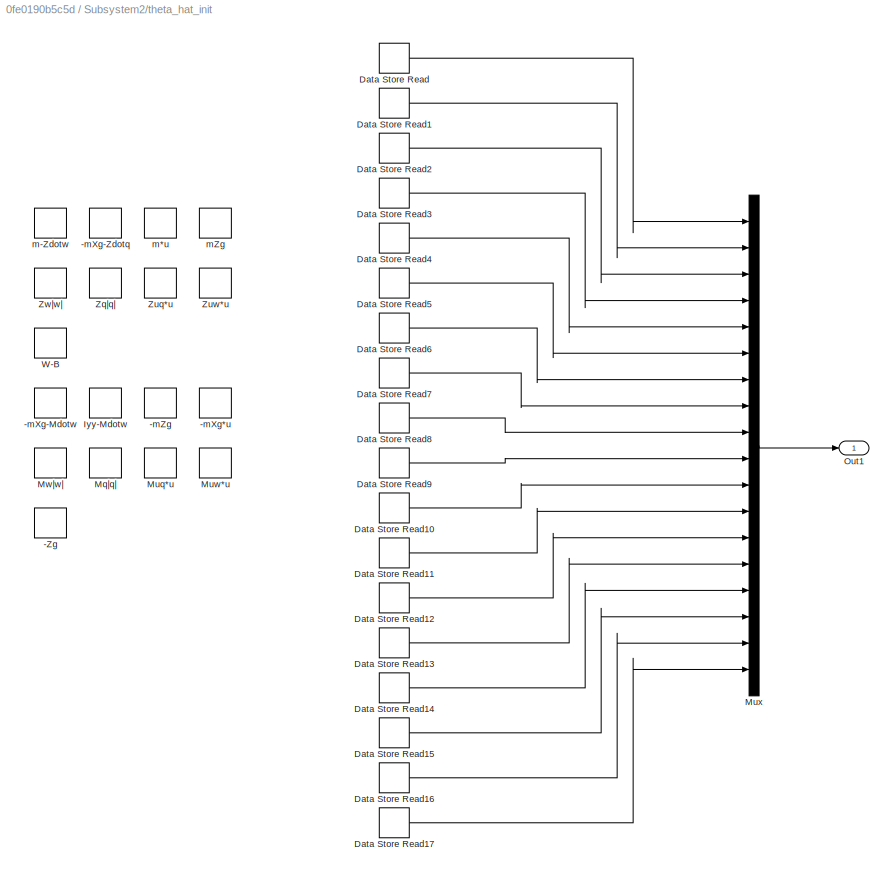
BLOCK [SubSystem] Subsystem2/theta_hat_init
  Ports = [0, 1]
  RequestExecContextInheritance = off
BLOCK [DataStoreMemory] Subsystem2/theta_hat_init/-Zg
  DataStoreName = fai_theta18
  InitialValue = -0.0196000000000000
  ReadBeforeWriteMsg = warning
  ShowAdditionalParam = off
  WriteAfterReadMsg = warning
  WriteAfterWriteMsg = warning
BLOCK [DataStoreMemory] Subsystem2/theta_hat_init/-mXg*u
  DataStoreName = fai_theta13
  ReadBeforeWriteMsg = warning
  ShowAdditionalParam = off
  WriteAfterReadMsg = warning
  WriteAfterWriteMsg = warning
BLOCK [DataStoreMemory] Subsystem2/theta_hat_init/-mXg-Mdotw
  DataStoreName = fai_theta10
  InitialValue = 1.93000000000000
  ReadBeforeWriteMsg = warning
  ShowAdditionalParam = off
  WriteAfterReadMsg = warning
  WriteAfterWriteMsg = warning
BLOCK [DataStoreMemory] Subsystem2/theta_hat_init/-mXg-Zdotq
  DataStoreName = fai_theta2
  InitialValue = 1.930000000000000
  ReadBeforeWriteMsg = warning
  ShowAdditionalParam = off
  WriteAfterReadMsg = warning
  WriteAfterWriteMsg = warning
BLOCK [DataStoreMemory] Subsystem2/theta_hat_init/-mZg
  DataStoreName = fai_theta12
  InitialValue = -0.597408000000000
  ReadBeforeWriteMsg = warning
  ShowAdditionalParam = off
  WriteAfterReadMsg = warning
  WriteAfterWriteMsg = warning
BLOCK [DataStoreRead] Subsystem2/theta_hat_init/Data Store Read
  DataStoreName = fai_theta1
  IndexOptions = Index vector (dialog)
  Indices = 1
  OutputSizes = 1
  Ports = [0, 1]
BLOCK [DataStoreRead] Subsystem2/theta_hat_init/Data Store Read1
  DataStoreName = fai_theta2
  IndexOptions = Index vector (dialog)
  Indices = 1
  OutputSizes = 1
  Ports = [0, 1]
BLOCK [DataStoreRead] Subsystem2/theta_hat_init/Data Store Read10
  DataStoreName = fai_theta11
  IndexOptions = Index vector (dialog)
  Indices = 1
  OutputSizes = 1
  Ports = [0, 1]
BLOCK [DataStoreRead] Subsystem2/theta_hat_init/Data Store Read11
  DataStoreName = fai_theta12
  IndexOptions = Index vector (dialog)
  Indices = 1
  OutputSizes = 1
  Ports = [0, 1]
BLOCK [DataStoreRead] Subsystem2/theta_hat_init/Data Store Read12
  DataStoreName = fai_theta13
  IndexOptions = Index vector (dialog)
  Indices = 1
  OutputSizes = 1
  Ports = [0, 1]
BLOCK [DataStoreRead] Subsystem2/theta_hat_init/Data Store Read13
  DataStoreName = fai_theta14
  IndexOptions = Index vector (dialog)
  Indices = 1
  OutputSizes = 1
  Ports = [0, 1]
BLOCK [DataStoreRead] Subsystem2/theta_hat_init/Data Store Read14
  DataStoreName = fai_theta15
  IndexOptions = Index vector (dialog)
  Indices = 1
  OutputSizes = 1
  Ports = [0, 1]
BLOCK [DataStoreRead] Subsystem2/theta_hat_init/Data Store Read15
  DataStoreName = fai_theta16
  IndexOptions = Index vector (dialog)
  Indices = 1
  OutputSizes = 1
  Ports = [0, 1]
BLOCK [DataStoreRead] Subsystem2/theta_hat_init/Data Store Read16
  DataStoreName = fai_theta17
  IndexOptions = Index vector (dialog)
  Indices = 1
  OutputSizes = 1
  Ports = [0, 1]
BLOCK [DataStoreRead] Subsystem2/theta_hat_init/Data Store Read17
  DataStoreName = fai_theta18
  IndexOptions = Index vector (dialog)
  Indices = 1
  OutputSizes = 1
  Ports = [0, 1]
BLOCK [DataStoreRead] Subsystem2/theta_hat_init/Data Store Read2
  DataStoreName = fai_theta3
  IndexOptions = Index vector (dialog)
  Indices = 1
  OutputSizes = 1
  Ports = [0, 1]
BLOCK [DataStoreRead] Subsystem2/theta_hat_init/Data Store Read3
  DataStoreName = fai_theta4
  IndexOptions = Index vector (dialog)
  Indices = 1
  OutputSizes = 1
  Ports = [0, 1]
BLOCK [DataStoreRead] Subsystem2/theta_hat_init/Data Store Read4
  DataStoreName = fai_theta5
  IndexOptions = Index vector (dialog)
  Indices = 1
  OutputSizes = 1
  Ports = [0, 1]
BLOCK [DataStoreRead] Subsystem2/theta_hat_init/Data Store Read5
  DataStoreName = fai_theta6
  IndexOptions = Index vector (dialog)
  Indices = 1
  OutputSizes = 1
  Ports = [0, 1]
BLOCK [DataStoreRead] Subsystem2/theta_hat_init/Data Store Read6
  DataStoreName = fai_theta7
  IndexOptions = Index vector (dialog)
  Indices = 1
  OutputSizes = 1
  Ports = [0, 1]
BLOCK [DataStoreRead] Subsystem2/theta_hat_init/Data Store Read7
  DataStoreName = fai_theta8
  IndexOptions = Index vector (dialog)
  Indices = 1
  OutputSizes = 1
  Ports = [0, 1]
BLOCK [DataStoreRead] Subsystem2/theta_hat_init/Data Store Read8
  DataStoreName = fai_theta9
  IndexOptions = Index vector (dialog)
  Indices = 1
  OutputSizes = 1
  Ports = [0, 1]
BLOCK [DataStoreRead] Subsystem2/theta_hat_init/Data Store Read9
  DataStoreName = fai_theta10
  IndexOptions = Index vector (dialog)
  Indices = 1
  OutputSizes = 1
  Ports = [0, 1]
BLOCK [DataStoreMemory] Subsystem2/theta_hat_init/Iyy-Mdotw
  DataStoreName = fai_theta11
  InitialValue = 8.330000000000000
  ReadBeforeWriteMsg = warning
  ShowAdditionalParam = off
  WriteAfterReadMsg = warning
  WriteAfterWriteMsg = warning
BLOCK [DataStoreMemory] Subsystem2/theta_hat_init/Mq|q|
  DataStoreName = fai_theta15
  InitialValue = -9.40000000000000
  ReadBeforeWriteMsg = warning
  ShowAdditionalParam = off
  WriteAfterReadMsg = warning
  WriteAfterWriteMsg = warning
BLOCK [DataStoreMemory] Subsystem2/theta_hat_init/Muq*u
  DataStoreName = fai_theta16
  InitialValue = -1
  ReadBeforeWriteMsg = warning
  ShowAdditionalParam = off
  WriteAfterReadMsg = warning
  WriteAfterWriteMsg = warning
BLOCK [DataStoreMemory] Subsystem2/theta_hat_init/Muw*u
  DataStoreName = fai_theta17
  InitialValue = 12
  ReadBeforeWriteMsg = warning
  ShowAdditionalParam = off
  WriteAfterReadMsg = warning
  WriteAfterWriteMsg = warning
BLOCK [Mux] Subsystem2/theta_hat_init/Mux
  DisplayOption = bar
  Inputs = 18
  Ports = [18, 1]
BLOCK [DataStoreMemory] Subsystem2/theta_hat_init/Mw|w|
  DataStoreName = fai_theta14
  InitialValue = 3.18000000000000
  ReadBeforeWriteMsg = warning
  ShowAdditionalParam = off
  WriteAfterReadMsg = warning
  WriteAfterWriteMsg = warning
BLOCK [Outport] Subsystem2/theta_hat_init/Out1
BLOCK [DataStoreMemory] Subsystem2/theta_hat_init/W-B
  DataStoreName = fai_theta9
  InitialValue = -9
  ReadBeforeWriteMsg = warning
  ShowAdditionalParam = off
  WriteAfterReadMsg = warning
  WriteAfterWriteMsg = warning
BLOCK [DataStoreMemory] Subsystem2/theta_hat_init/Zq|q|
  DataStoreName = fai_theta6
  InitialValue = -0.632000000000000
  ReadBeforeWriteMsg = warning
  ShowAdditionalParam = off
  WriteAfterReadMsg = warning
  WriteAfterWriteMsg = warning
BLOCK [DataStoreMemory] Subsystem2/theta_hat_init/Zuq*u
  DataStoreName = fai_theta7
  InitialValue = -2.61000000000000
  ReadBeforeWriteMsg = warning
  ShowAdditionalParam = off
  WriteAfterReadMsg = warning
  WriteAfterWriteMsg = warning
BLOCK [DataStoreMemory] Subsystem2/theta_hat_init/Zuw*u
  DataStoreName = fai_theta8
  InitialValue = -14.3000000000000
  ReadBeforeWriteMsg = warning
  ShowAdditionalParam = off
  WriteAfterReadMsg = warning
  WriteAfterWriteMsg = warning
BLOCK [DataStoreMemory] Subsystem2/theta_hat_init/Zw|w|
  DataStoreName = fai_theta5
  InitialValue = -131
  ReadBeforeWriteMsg = warning
  ShowAdditionalParam = off
  WriteAfterReadMsg = warning
  WriteAfterWriteMsg = warning
BLOCK [DataStoreMemory] Subsystem2/theta_hat_init/m*u
  DataStoreName = fai_theta3
  InitialValue = 15.2400000000000
  ReadBeforeWriteMsg = warning
  ShowAdditionalParam = off
  WriteAfterReadMsg = warning
  WriteAfterWriteMsg = warning
BLOCK [DataStoreMemory] Subsystem2/theta_hat_init/m-Zdotw
  DataStoreName = fai_theta1
  InitialValue = 65.980000000000000
  ReadBeforeWriteMsg = warning
  ShowAdditionalParam = off
  WriteAfterReadMsg = warning
  WriteAfterWriteMsg = warning
BLOCK [DataStoreMemory] Subsystem2/theta_hat_init/mZg
  DataStoreName = fai_theta4
  InitialValue = 0.597408000000000
  ReadBeforeWriteMsg = warning
  ShowAdditionalParam = off
  WriteAfterReadMsg = warning
  WriteAfterWriteMsg = warning
BLOCK [Inport] Subsystem2/u_sin_vet
  Port = 5
BLOCK [Inport] Subsystem2/w;q
  Port = 2
BLOCK [SubSystem] Subsystem4
  Commented = on
  PortSchema = {"entries":[{"content":{"sides":[{"content":{"connectorIds":["In1","In2","In3","In4","In5","In6","In7"]},"type":"ConnectorPlacement.EquallySpacedRectSide","uuid":"5c5a44e6-8d8e-440f-9e7c-8dc2648a5aa2"},{"content":{"connectorIds":["Out1","Out2"],"side":"RIGHT"},"type":"ConnectorPlacement.EquallySpacedRectSide","uuid":"bbda16c8-79bf-4e81-8c5f-170a18e1caa9"},{"content":{"connectorIds":[],"side":"TOP"...<+433ch>
  Ports = [7, 3]
  RequestExecContextInheritance = off
BLOCK [Sum] Subsystem4/Add
  IconShape = rectangular
  Inputs = +-
  Ports = [2, 1]
BLOCK [Sum] Subsystem4/Add1
  IconShape = rectangular
  Inputs = +-
  Ports = [2, 1]
BLOCK [Sum] Subsystem4/Add2
  IconShape = rectangular
  Inputs = --+
  Ports = [3, 1]
BLOCK [Derivative] Subsystem4/Derivative
BLOCK [Inport] Subsystem4/Fai
  Port = 6
BLOCK [Inport] Subsystem4/Fai_t
  Port = 7
BLOCK [Gain] Subsystem4/Gama_1
  Gain = 0.8
BLOCK [Gain] Subsystem4/Gama_2
  Gain = 7
BLOCK [Outport] Subsystem4/Input
BLOCK [Integrator] Subsystem4/Integrator
  InitialConditionSource = external
  Ports = [2, 1]
BLOCK [Inport] Subsystem4/J_theta
BLOCK [Product] Subsystem4/Matrix Multiply
  Multiplication = Matrix(*)
  Ports = [2, 1]
BLOCK [Product] Subsystem4/Matrix Multiply1
  Multiplication = Matrix(*)
  Ports = [2, 1]
BLOCK [Product] Subsystem4/Matrix Multiply2
  Multiplication = Matrix(*)
  Ports = [2, 1]
BLOCK [Product] Subsystem4/Matrix Multiply3
  Multiplication = Matrix(*)
  NameLocation = right
  Ports = [2, 1]
BLOCK [Mux] Subsystem4/Mux
  DisplayOption = bar
  Inputs = 2
  Ports = [2, 1]
BLOCK [Mux] Subsystem4/Mux1
  DisplayOption = bar
  Inputs = 2
  NameLocation = right
  Ports = [2, 1]
BLOCK [Product] Subsystem4/Product
  Inputs = /
  Multiplication = Matrix(*)
  Ports = [1, 1]
BLOCK [Saturate] Subsystem4/Saturation
  LowerLimit = -100
  UpperLimit = 120
BLOCK [Sum] Subsystem4/Sum
  Inputs = |+-
  Ports = [2, 1]
BLOCK [Sum] Subsystem4/Sum1
  Inputs = |+-
  Ports = [2, 1]
BLOCK [SubSystem] Subsystem4/cmd
  NameLocation = right
  Ports = [0, 2]
  RequestExecContextInheritance = off
BLOCK [Sum] Subsystem4/cmd/Add
  IconShape = rectangular
  Ports = [2, 1]
BLOCK [SubSystem] Subsystem4/cmd/Cmd Depth
  ClipboardFcn = sigbuilder_block('clipboard');
  CloseFcn = sigbuilder_block('close');
  ContinueFcn = sigbuilder_block('continue');
  CopyFcn = sigbuilder_block('copy');
  DeleteFcn = sigbuilder_block('delete');
  LoadFcn = sigbuilder_block('load');
  MaskHideContents = on
  ModelCloseFcn = sigbuilder_block('modelClose');
  NameChangeFcn = sigbuilder_block('namechange');
  OpenFcn = sigbuilder_block('open',[361.8 75 550.8 375 ]);
  PauseFcn = sigbuilder_block('pause');
  Ports = [0, 1]
  PreSaveFcn = sigbuilder_block('preSave');
  RequestExecContextInheritance = off
  StartFcn = sigbuilder_block('start');
  StopFcn = sigbuilder_block('stop');
  Tag = STV Subsys
BLOCK [Demux] Subsystem4/cmd/Cmd Depth/Demux
  DisplayOption = none
  Outputs = 1
  Ports = [1, 1]
  Tag = STV Demux
BLOCK [FromWorkspace] Subsystem4/cmd/Cmd Depth/FromWs
  Tag = STV FromWs
  VariableName = tuvar
BLOCK [Outport] Subsystem4/cmd/Cmd Depth/Signal 2
  Tag = STV Outport
BLOCK [SubSystem] Subsystem4/cmd/Cmd theta
  ClipboardFcn = sigbuilder_block('clipboard');
  CloseFcn = sigbuilder_block('close');
  ContinueFcn = sigbuilder_block('continue');
  CopyFcn = sigbuilder_block('copy');
  DeleteFcn = sigbuilder_block('delete');
  LoadFcn = sigbuilder_block('load');
  MaskHideContents = on
  ModelCloseFcn = sigbuilder_block('modelClose');
  NameChangeFcn = sigbuilder_block('namechange');
  OpenFcn = sigbuilder_block('open',[313.2 49.2 550.8 400.8 ]);
  PauseFcn = sigbuilder_block('pause');
  Ports = [0, 1]
  PreSaveFcn = sigbuilder_block('preSave');
  RequestExecContextInheritance = off
  StartFcn = sigbuilder_block('start');
  StopFcn = sigbuilder_block('stop');
  Tag = STV Subsys
BLOCK [Demux] Subsystem4/cmd/Cmd theta/Demux
  DisplayOption = none
  Outputs = 1
  Ports = [1, 1]
  Tag = STV Demux
BLOCK [FromWorkspace] Subsystem4/cmd/Cmd theta/FromWs
  Tag = STV FromWs
  VariableName = tuvar
BLOCK [Outport] Subsystem4/cmd/Cmd theta/Signal 1
  Tag = STV Outport
BLOCK [Constant] Subsystem4/cmd/Constant1
  Value = -1
BLOCK [Constant] Subsystem4/cmd/Constant2
  NameLocation = right
  Value = 0
BLOCK [Constant] Subsystem4/cmd/Constant3
BLOCK [Constant] Subsystem4/cmd/Constant4
  Value = 0
BLOCK [Outport] Subsystem4/cmd/Out1
BLOCK [Outport] Subsystem4/cmd/Out2
  Port = 2
BLOCK [SignalGenerator] Subsystem4/cmd/Signal Generator
  Amplitude = 3
  Frequency = 0.1
  Ports = [0, 1]
  Units = rad/sec
BLOCK [Switch] Subsystem4/cmd/Switch
  Criteria = u2 > Threshold
  InputSameDT = off
  SaturateOnIntegerOverflow = off
BLOCK [Switch] Subsystem4/cmd/Switch1
  Criteria = u2 > Threshold
  InputSameDT = off
  SaturateOnIntegerOverflow = off
BLOCK [Inport] Subsystem4/depth
  Port = 3
BLOCK [Outport] Subsystem4/dota1
  Port = 3
BLOCK [Gain] Subsystem4/lambda
  Gain = -0.03
BLOCK [Outport] Subsystem4/tao
  Port = 2
BLOCK [Inport] Subsystem4/theta
  Port = 4
BLOCK [SubSystem] Subsystem4/theta_hat_init
  Ports = [0, 1]
  RequestExecContextInheritance = off
BLOCK [DataStoreMemory] Subsystem4/theta_hat_init/-Zg
  DataStoreName = fai_theta18
  InitialValue = -0.0196000000000000
  ReadBeforeWriteMsg = warning
  ShowAdditionalParam = off
  WriteAfterReadMsg = warning
  WriteAfterWriteMsg = warning
BLOCK [DataStoreMemory] Subsystem4/theta_hat_init/-mXg*u
  DataStoreName = fai_theta13
  ReadBeforeWriteMsg = warning
  ShowAdditionalParam = off
  WriteAfterReadMsg = warning
  WriteAfterWriteMsg = warning
BLOCK [DataStoreMemory] Subsystem4/theta_hat_init/-mXg-Mdotw
  DataStoreName = fai_theta10
  InitialValue = 1.93000000000000
  ReadBeforeWriteMsg = warning
  ShowAdditionalParam = off
  WriteAfterReadMsg = warning
  WriteAfterWriteMsg = warning
BLOCK [DataStoreMemory] Subsystem4/theta_hat_init/-mXg-Zdotq
  DataStoreName = fai_theta2
  InitialValue = 1.930000000000000
  ReadBeforeWriteMsg = warning
  ShowAdditionalParam = off
  WriteAfterReadMsg = warning
  WriteAfterWriteMsg = warning
BLOCK [DataStoreMemory] Subsystem4/theta_hat_init/-mZg
  DataStoreName = fai_theta12
  InitialValue = -0.597408000000000
  ReadBeforeWriteMsg = warning
  ShowAdditionalParam = off
  WriteAfterReadMsg = warning
  WriteAfterWriteMsg = warning
BLOCK [DataStoreRead] Subsystem4/theta_hat_init/Data Store Read
  DataStoreName = fai_theta1
  IndexOptions = Index vector (dialog)
  Indices = 1
  OutputSizes = 1
  Ports = [0, 1]
BLOCK [DataStoreRead] Subsystem4/theta_hat_init/Data Store Read1
  DataStoreName = fai_theta2
  IndexOptions = Index vector (dialog)
  Indices = 1
  OutputSizes = 1
  Ports = [0, 1]
BLOCK [DataStoreRead] Subsystem4/theta_hat_init/Data Store Read10
  DataStoreName = fai_theta11
  IndexOptions = Index vector (dialog)
  Indices = 1
  OutputSizes = 1
  Ports = [0, 1]
BLOCK [DataStoreRead] Subsystem4/theta_hat_init/Data Store Read11
  DataStoreName = fai_theta12
  IndexOptions = Index vector (dialog)
  Indices = 1
  OutputSizes = 1
  Ports = [0, 1]
BLOCK [DataStoreRead] Subsystem4/theta_hat_init/Data Store Read12
  DataStoreName = fai_theta13
  IndexOptions = Index vector (dialog)
  Indices = 1
  OutputSizes = 1
  Ports = [0, 1]
BLOCK [DataStoreRead] Subsystem4/theta_hat_init/Data Store Read13
  DataStoreName = fai_theta14
  IndexOptions = Index vector (dialog)
  Indices = 1
  OutputSizes = 1
  Ports = [0, 1]
BLOCK [DataStoreRead] Subsystem4/theta_hat_init/Data Store Read14
  DataStoreName = fai_theta15
  IndexOptions = Index vector (dialog)
  Indices = 1
  OutputSizes = 1
  Ports = [0, 1]
BLOCK [DataStoreRead] Subsystem4/theta_hat_init/Data Store Read15
  DataStoreName = fai_theta16
  IndexOptions = Index vector (dialog)
  Indices = 1
  OutputSizes = 1
  Ports = [0, 1]
BLOCK [DataStoreRead] Subsystem4/theta_hat_init/Data Store Read16
  DataStoreName = fai_theta17
  IndexOptions = Index vector (dialog)
  Indices = 1
  OutputSizes = 1
  Ports = [0, 1]
BLOCK [DataStoreRead] Subsystem4/theta_hat_init/Data Store Read17
  DataStoreName = fai_theta18
  IndexOptions = Index vector (dialog)
  Indices = 1
  OutputSizes = 1
  Ports = [0, 1]
BLOCK [DataStoreRead] Subsystem4/theta_hat_init/Data Store Read2
  DataStoreName = fai_theta3
  IndexOptions = Index vector (dialog)
  Indices = 1
  OutputSizes = 1
  Ports = [0, 1]
BLOCK [DataStoreRead] Subsystem4/theta_hat_init/Data Store Read3
  DataStoreName = fai_theta4
  IndexOptions = Index vector (dialog)
  Indices = 1
  OutputSizes = 1
  Ports = [0, 1]
BLOCK [DataStoreRead] Subsystem4/theta_hat_init/Data Store Read4
  DataStoreName = fai_theta5
  IndexOptions = Index vector (dialog)
  Indices = 1
  OutputSizes = 1
  Ports = [0, 1]
BLOCK [DataStoreRead] Subsystem4/theta_hat_init/Data Store Read5
  DataStoreName = fai_theta6
  IndexOptions = Index vector (dialog)
  Indices = 1
  OutputSizes = 1
  Ports = [0, 1]
BLOCK [DataStoreRead] Subsystem4/theta_hat_init/Data Store Read6
  DataStoreName = fai_theta7
  IndexOptions = Index vector (dialog)
  Indices = 1
  OutputSizes = 1
  Ports = [0, 1]
BLOCK [DataStoreRead] Subsystem4/theta_hat_init/Data Store Read7
  DataStoreName = fai_theta8
  IndexOptions = Index vector (dialog)
  Indices = 1
  OutputSizes = 1
  Ports = [0, 1]
BLOCK [DataStoreRead] Subsystem4/theta_hat_init/Data Store Read8
  DataStoreName = fai_theta9
  IndexOptions = Index vector (dialog)
  Indices = 1
  OutputSizes = 1
  Ports = [0, 1]
BLOCK [DataStoreRead] Subsystem4/theta_hat_init/Data Store Read9
  DataStoreName = fai_theta10
  IndexOptions = Index vector (dialog)
  Indices = 1
  OutputSizes = 1
  Ports = [0, 1]
BLOCK [DataStoreMemory] Subsystem4/theta_hat_init/Iyy-Mdotw
  DataStoreName = fai_theta11
  InitialValue = 8.330000000000000
  ReadBeforeWriteMsg = warning
  ShowAdditionalParam = off
  WriteAfterReadMsg = warning
  WriteAfterWriteMsg = warning
BLOCK [DataStoreMemory] Subsystem4/theta_hat_init/Mq|q|
  DataStoreName = fai_theta15
  InitialValue = -9.40000000000000
  ReadBeforeWriteMsg = warning
  ShowAdditionalParam = off
  WriteAfterReadMsg = warning
  WriteAfterWriteMsg = warning
BLOCK [DataStoreMemory] Subsystem4/theta_hat_init/Muq*u
  DataStoreName = fai_theta16
  InitialValue = -1
  ReadBeforeWriteMsg = warning
  ShowAdditionalParam = off
  WriteAfterReadMsg = warning
  WriteAfterWriteMsg = warning
BLOCK [DataStoreMemory] Subsystem4/theta_hat_init/Muw*u
  DataStoreName = fai_theta17
  InitialValue = 12
  ReadBeforeWriteMsg = warning
  ShowAdditionalParam = off
  WriteAfterReadMsg = warning
  WriteAfterWriteMsg = warning
BLOCK [Mux] Subsystem4/theta_hat_init/Mux
  DisplayOption = bar
  Inputs = 18
  Ports = [18, 1]
BLOCK [DataStoreMemory] Subsystem4/theta_hat_init/Mw|w|
  DataStoreName = fai_theta14
  InitialValue = 3.18000000000000
  ReadBeforeWriteMsg = warning
  ShowAdditionalParam = off
  WriteAfterReadMsg = warning
  WriteAfterWriteMsg = warning
BLOCK [Outport] Subsystem4/theta_hat_init/Out1
BLOCK [DataStoreMemory] Subsystem4/theta_hat_init/W-B
  DataStoreName = fai_theta9
  InitialValue = -9
  ReadBeforeWriteMsg = warning
  ShowAdditionalParam = off
  WriteAfterReadMsg = warning
  WriteAfterWriteMsg = warning
BLOCK [DataStoreMemory] Subsystem4/theta_hat_init/Zq|q|
  DataStoreName = fai_theta6
  InitialValue = -0.632000000000000
  ReadBeforeWriteMsg = warning
  ShowAdditionalParam = off
  WriteAfterReadMsg = warning
  WriteAfterWriteMsg = warning
BLOCK [DataStoreMemory] Subsystem4/theta_hat_init/Zuq*u
  DataStoreName = fai_theta7
  InitialValue = -2.61000000000000
  ReadBeforeWriteMsg = warning
  ShowAdditionalParam = off
  WriteAfterReadMsg = warning
  WriteAfterWriteMsg = warning
BLOCK [DataStoreMemory] Subsystem4/theta_hat_init/Zuw*u
  DataStoreName = fai_theta8
  InitialValue = -14.3000000000000
  ReadBeforeWriteMsg = warning
  ShowAdditionalParam = off
  WriteAfterReadMsg = warning
  WriteAfterWriteMsg = warning
BLOCK [DataStoreMemory] Subsystem4/theta_hat_init/Zw|w|
  DataStoreName = fai_theta5
  InitialValue = -131
  ReadBeforeWriteMsg = warning
  ShowAdditionalParam = off
  WriteAfterReadMsg = warning
  WriteAfterWriteMsg = warning
BLOCK [DataStoreMemory] Subsystem4/theta_hat_init/m*u
  DataStoreName = fai_theta3
  InitialValue = 15.2400000000000
  ReadBeforeWriteMsg = warning
  ShowAdditionalParam = off
  WriteAfterReadMsg = warning
  WriteAfterWriteMsg = warning
BLOCK [DataStoreMemory] Subsystem4/theta_hat_init/m-Zdotw
  DataStoreName = fai_theta1
  InitialValue = 65.980000000000000
  ReadBeforeWriteMsg = warning
  ShowAdditionalParam = off
  WriteAfterReadMsg = warning
  WriteAfterWriteMsg = warning
BLOCK [DataStoreMemory] Subsystem4/theta_hat_init/mZg
  DataStoreName = fai_theta4
  InitialValue = 0.597408000000000
  ReadBeforeWriteMsg = warning
  ShowAdditionalParam = off
  WriteAfterReadMsg = warning
  WriteAfterWriteMsg = warning
BLOCK [Inport] Subsystem4/u_sin_vet
  Port = 5
BLOCK [Inport] Subsystem4/w;q
  Port = 2
BLOCK [Sum] Sum
  Commented = on
  Inputs = |++
  Ports = [2, 1]
BLOCK [Terminator] Terminator
  Commented = on
BLOCK [Terminator] Terminator1
  Commented = on
BLOCK [Terminator] Terminator2
  Commented = on
BLOCK [Terminator] Terminator3
  Commented = on
BLOCK [Terminator] Terminator4
BLOCK [Terminator] Terminator5
BLOCK [Terminator] Terminator8
  Commented = on
BLOCK [Terminator] Terminator9
  Commented = on
BLOCK [SubSystem] speed_cintrol
  Ports = [1, 1]
  RequestExecContextInheritance = off
BLOCK [Abs] speed_cintrol/Abs2
  NameLocation = top
  SaturateOnIntegerOverflow = off
BLOCK [Sum] speed_cintrol/Add1
  IconShape = rectangular
  Inputs = -+
  Ports = [2, 1]
BLOCK [Sum] speed_cintrol/Add3
  IconShape = rectangular
  Ports = [2, 1]
BLOCK [Constant] speed_cintrol/Constant2
  NameLocation = right
  Value = 0.15
BLOCK [Derivative] speed_cintrol/Derivative2
BLOCK [Inport] speed_cintrol/Input
BLOCK [Integrator] speed_cintrol/Integrator1
  Ports = [1, 1]
BLOCK [SubSystem] speed_cintrol/Kinetic model
  PortSchema = {"entries":[{"content":{"sides":[{"content":{"connectorIds":["In1","In2"]},"type":"ConnectorPlacement.EquallySpacedRectSide","uuid":"ab557843-e031-4248-b9d1-7c566f741c61"},{"content":{"connectorIds":["Out1","In3"],"side":"RIGHT"},"type":"ConnectorPlacement.EquallySpacedRectSide","uuid":"21457043-a342-42ad-b992-fc1f26888830"},{"content":{"connectorIds":[],"side":"TOP"},"type":"ConnectorPlacement.Eq...<+252ch>
  Ports = [3, 1]
  RequestExecContextInheritance = off
BLOCK [Sum] speed_cintrol/Kinetic model/Add2
  IconShape = rectangular
  Inputs = +++
  Ports = [3, 1]
BLOCK [Constant] speed_cintrol/Kinetic model/Constant5
  NameLocation = right
  Value = -1
BLOCK [Constant] speed_cintrol/Kinetic model/Constant6
  NameLocation = left
BLOCK [Product] speed_cintrol/Kinetic model/Divide
  Inputs = */
  Ports = [2, 1]
BLOCK [Inport] speed_cintrol/Kinetic model/Input
  Port = 3
BLOCK [SubSystem] speed_cintrol/Kinetic model/MATLAB Function
  ErrorFcn = Stateflow.Translate.translate
  PermitHierarchicalResolution = ExplicitOnly
  Ports = [1, 3]
  RequestExecContextInheritance = off
  SFBlockType = MATLAB Function
  TreatAsAtomicUnit = on
BLOCK [Demux] speed_cintrol/Kinetic model/MATLAB Function/ Demux 
  Outputs = 1
  Ports = [1, 1]
BLOCK [S-Function] speed_cintrol/Kinetic model/MATLAB Function/ SFunction 
  EnableBusSupport = on
  FunctionName = sf_sfun
  PortCounts = [1 4]
  Ports = [1, 4]
  SFcnIsStateOwnerBlock = off
  SFunctionDeploymentMode = off
  Tag = Stateflow S-Function 12
BLOCK [Terminator] speed_cintrol/Kinetic model/MATLAB Function/ Terminator 
BLOCK [Outport] speed_cintrol/Kinetic model/MATLAB Function/beta_true
  Port = 2
BLOCK [Outport] speed_cintrol/Kinetic model/MATLAB Function/delta_true
  Port = 3
BLOCK [Inport] speed_cintrol/Kinetic model/MATLAB Function/delta_u
BLOCK [Outport] speed_cintrol/Kinetic model/MATLAB Function/gama_true
BLOCK [Product] speed_cintrol/Kinetic model/Matrix Multiply4
  Multiplication = Matrix(*)
  Ports = [2, 1]
BLOCK [Switch] speed_cintrol/Kinetic model/Switch1
  Criteria = u2 > Threshold
  InputSameDT = off
  SaturateOnIntegerOverflow = off
BLOCK [Outport] speed_cintrol/Kinetic model/dot_ur
BLOCK [Inport] speed_cintrol/Kinetic model/tao_u
  NameLocation = top
  Port = 2
BLOCK [Inport] speed_cintrol/Kinetic model/ur|ur|
BLOCK [Product] speed_cintrol/Matrix Multiply1
  Multiplication = Matrix(*)
  NameLocation = top
  Ports = [2, 1]
BLOCK [SignalGenerator] speed_cintrol/Signal Generator1
  Amplitude = 0.2
  Frequency = 0.0143
  Ports = [0, 1]
BLOCK [Sum] speed_cintrol/Sum1
  Inputs = |++
  Ports = [2, 1]
BLOCK [SubSystem] speed_cintrol/controller
  Ports = [3, 1]
  RequestExecContextInheritance = off
BLOCK [Sum] speed_cintrol/controller/Add
  IconShape = rectangular
  Inputs = ----+
  NameLocation = top
  Ports = [5, 1]
BLOCK [Sum] speed_cintrol/controller/Add4
  IconShape = rectangular
  Inputs = +---+
  Ports = [5, 1]
BLOCK [Constant] speed_cintrol/controller/Constant1
  Value = -1
BLOCK [Constant] speed_cintrol/controller/Constant5
BLOCK [Gain] speed_cintrol/controller/Gain
  Gain = 0.07
BLOCK [Integrator] speed_cintrol/controller/Integrator4
  Ports = [1, 1]
BLOCK [Integrator] speed_cintrol/controller/Integrator6
  InitialCondition = -0.054
  Ports = [1, 1]
BLOCK [Integrator] speed_cintrol/controller/Integrator7
  InitialCondition = 34.9
  Ports = [1, 1]
BLOCK [Product] speed_cintrol/controller/Matrix Multiply4
  Multiplication = Matrix(*)
  Ports = [2, 1]
BLOCK [Product] speed_cintrol/controller/Matrix Multiply6
  Multiplication = Matrix(*)
  Ports = [2, 1]
BLOCK [Product] speed_cintrol/controller/Matrix Multiply7
  Multiplication = Matrix(*)
  Ports = [2, 1]
BLOCK [Product] speed_cintrol/controller/Matrix Multiply8
  Multiplication = Matrix(*)
  Ports = [2, 1]
BLOCK [Switch] speed_cintrol/controller/Switch1
  Criteria = u2 > Threshold
  InputSameDT = off
  SaturateOnIntegerOverflow = off
BLOCK [Inport] speed_cintrol/controller/Z1
  Port = 3
BLOCK [Inport] speed_cintrol/controller/dot_ud
  Port = 2
BLOCK [Gain] speed_cintrol/controller/eta1
  Gain = 0.01
BLOCK [Gain] speed_cintrol/controller/k1
  Gain = 3
BLOCK [Outport] speed_cintrol/controller/tao_u
BLOCK [Inport] speed_cintrol/controller/ur|ur|
BLOCK [Outport] speed_cintrol/u
BLOCK [SubSystem] speed_d
  ClipboardFcn = sigbuilder_block('clipboard');
  CloseFcn = sigbuilder_block('close');
  ContinueFcn = sigbuilder_block('continue');
  CopyFcn = sigbuilder_block('copy');
  DeleteFcn = sigbuilder_block('delete');
  LoadFcn = sigbuilder_block('load');
  MaskHideContents = on
  ModelCloseFcn = sigbuilder_block('modelClose');
  NameChangeFcn = sigbuilder_block('namechange');
  OpenFcn = sigbuilder_block('open',[437.6 199.2 550.4 400 ]);
  PauseFcn = sigbuilder_block('pause');
  Ports = [0, 1]
  PreSaveFcn = sigbuilder_block('preSave');
  RequestExecContextInheritance = off
  StartFcn = sigbuilder_block('start');
  StopFcn = sigbuilder_block('stop');
  Tag = STV Subsys
BLOCK [Demux] speed_d/Demux
  DisplayOption = none
  Outputs = 1
  Ports = [1, 1]
  Tag = STV Demux
BLOCK [FromWorkspace] speed_d/FromWs
  Tag = STV FromWs
  VariableName = tuvar
BLOCK [Outport] speed_d/Signal 1
  Tag = STV Outport
BLOCK [SubSystem] 动力学模型1
  Commented = on
  PortSchema = {"entries":[{"content":{"sides":[{"content":{"connectorIds":["In1","In2"]},"type":"ConnectorPlacement.EquallySpacedRectSide","uuid":"ab557843-e031-4248-b9d1-7c566f741c61"},{"content":{"connectorIds":["Out1","In3"],"side":"RIGHT"},"type":"ConnectorPlacement.EquallySpacedRectSide","uuid":"21457043-a342-42ad-b992-fc1f26888830"},{"content":{"connectorIds":[],"side":"TOP"},"type":"ConnectorPlacement.Eq...<+252ch>
  Ports = [3, 1]
  RequestExecContextInheritance = off
BLOCK [Sum] 动力学模型1/Add2
  IconShape = rectangular
  Inputs = +++
  Ports = [3, 1]
BLOCK [Constant] 动力学模型1/Constant5
  NameLocation = right
  Value = -1
BLOCK [Constant] 动力学模型1/Constant6
  NameLocation = left
BLOCK [Product] 动力学模型1/Divide
  Inputs = */
  Ports = [2, 1]
BLOCK [Inport] 动力学模型1/Input
  Port = 3
BLOCK [SubSystem] 动力学模型1/MATLAB Function
  ErrorFcn = Stateflow.Translate.translate
  PermitHierarchicalResolution = ExplicitOnly
  Ports = [1, 3]
  RequestExecContextInheritance = off
  SFBlockType = MATLAB Function
  TreatAsAtomicUnit = on
BLOCK [Demux] 动力学模型1/MATLAB Function/ Demux 
  Outputs = 1
  Ports = [1, 1]
BLOCK [S-Function] 动力学模型1/MATLAB Function/ SFunction 
  EnableBusSupport = on
  FunctionName = sf_sfun
  PortCounts = [1 4]
  Ports = [1, 4]
  SFcnIsStateOwnerBlock = off
  SFunctionDeploymentMode = off
  Tag = Stateflow S-Function 13
BLOCK [Terminator] 动力学模型1/MATLAB Function/ Terminator 
BLOCK [Outport] 动力学模型1/MATLAB Function/beta_true
  Port = 2
BLOCK [Outport] 动力学模型1/MATLAB Function/delta_true
  Port = 3
BLOCK [Inport] 动力学模型1/MATLAB Function/delta_u
BLOCK [Outport] 动力学模型1/MATLAB Function/gama_true
BLOCK [Product] 动力学模型1/Matrix Multiply4
  Multiplication = Matrix(*)
  Ports = [2, 1]
BLOCK [Switch] 动力学模型1/Switch1
  Criteria = u2 > Threshold
  InputSameDT = off
  SaturateOnIntegerOverflow = off
BLOCK [Outport] 动力学模型1/dot_ur
BLOCK [Inport] 动力学模型1/tao_u
  NameLocation = top
  Port = 2
BLOCK [Inport] 动力学模型1/ur|ur|
BLOCK [SubSystem] 控制器
  Commented = on
  Ports = [3, 1]
  RequestExecContextInheritance = off
BLOCK [Sum] 控制器/Add
  IconShape = rectangular
  Inputs = ----+
  NameLocation = top
  Ports = [5, 1]
BLOCK [Sum] 控制器/Add4
  IconShape = rectangular
  Inputs = +---+
  Ports = [5, 1]
BLOCK [Constant] 控制器/Constant1
  Value = -1
BLOCK [Constant] 控制器/Constant5
BLOCK [Gain] 控制器/Gain
  Gain = 0.07
BLOCK [Integrator] 控制器/Integrator4
  Ports = [1, 1]
BLOCK [Integrator] 控制器/Integrator6
  InitialCondition = -0.054
  Ports = [1, 1]
BLOCK [Integrator] 控制器/Integrator7
  InitialCondition = 34.9
  Ports = [1, 1]
BLOCK [Product] 控制器/Matrix Multiply4
  Multiplication = Matrix(*)
  Ports = [2, 1]
BLOCK [Product] 控制器/Matrix Multiply6
  Multiplication = Matrix(*)
  Ports = [2, 1]
BLOCK [Product] 控制器/Matrix Multiply7
  Multiplication = Matrix(*)
  Ports = [2, 1]
BLOCK [Product] 控制器/Matrix Multiply8
  Multiplication = Matrix(*)
  Ports = [2, 1]
BLOCK [Switch] 控制器/Switch1
  Criteria = u2 > Threshold
  InputSameDT = off
  SaturateOnIntegerOverflow = off
BLOCK [Inport] 控制器/Z1
  Port = 3
BLOCK [Inport] 控制器/dot_ud
  Port = 2
BLOCK [Gain] 控制器/eta1
  Gain = 0.01
BLOCK [Gain] 控制器/k1
  Gain = 3
BLOCK [Outport] 控制器/tao_u
BLOCK [Inport] 控制器/ur|ur|
ANNOTATION Kinetic model: w,q
ANNOTATION Kinetic model1: w,q
ANNOTATION Kinetic model2: w,q
ANNOTATION Kinetic model4: w,q
LINE Abs1:1 -> Matrix Multiply9:1
LINE Add2:1 -> 控制器:3
LINE Add5:1 -> Add2:2
LINE Constant:1 -> Sum:2
LINE Demux1:1 -> Terminator:1
LINE Demux1:2 -> Terminator1:1
LINE Demux2:1 -> Param1:1
LINE Demux2:2 -> Param1:2
LINE Demux2:3 -> Param1:3
LINE Demux3:1 -> Terminator2:1
LINE Demux3:2 -> Terminator3:1
LINE Demux4:1 -> Param2:1
LINE Demux4:2 -> Param2:2
LINE Demux4:3 -> Param2:3
LINE Demux5:1 -> Terminator4:1
LINE Demux5:2 -> Terminator5:1
LINE Demux8:1 -> Param4:1
LINE Demux8:2 -> Param4:2
LINE Demux8:3 -> Param4:3
LINE Demux9:1 -> Terminator8:1
LINE Demux9:2 -> Terminator9:1
LINE Demux:1 -> Param:1
LINE Demux:2 -> Param:2
LINE Demux:3 -> Param:3
LINE Derivative1:1 -> 控制器:2
LINE Fai1/Abs1:1 -> Fai1/Matrix Multiply1:1
LINE Fai1/Abs:1 -> Fai1/Matrix Multiply:1
LINE Fai1/Demux1:1 -> Fai1/MATLAB Function:3
LINE Fai1/Demux1:2 -> Fai1/MATLAB Function:6
NET Fai1/Demux:1 -> Fai1/Abs:1, Fai1/MATLAB Function:2, Fai1/Matrix Multiply2:2, Fai1/Matrix Multiply:2
NET Fai1/Demux:2 -> Fai1/Abs1:1, Fai1/MATLAB Function:5, Fai1/Matrix Multiply1:2, Fai1/Matrix Multiply2:1, Fai1/Square:1
LINE Fai1/Demux:3 -> Fai1/MATLAB Function:9
LINE Fai1/Input:1 -> Fai1/Demux:1
LINE Fai1/MATLAB Function:1 -> Fai1/Fai:1
LINE Fai1/MATLAB Function:2 -> Fai1/Fai_t:1
LINE Fai1/Matrix Multiply1:1 -> Fai1/MATLAB Function:4
LINE Fai1/Matrix Multiply2:1 -> Fai1/MATLAB Function:8
LINE Fai1/Matrix Multiply:1 -> Fai1/MATLAB Function:1
LINE Fai1/Square:1 -> Fai1/MATLAB Function:7
LINE Fai1/dota1:1 -> Fai1/Demux1:1
LINE Fai1:1 -> Subsystem2:6
LINE Fai1:2 -> Subsystem2:7
LINE Fai2/Abs1:1 -> Fai2/Matrix Multiply1:1
LINE Fai2/Abs:1 -> Fai2/Matrix Multiply:1
LINE Fai2/Demux1:1 -> Fai2/MATLAB Function:3
LINE Fai2/Demux1:2 -> Fai2/MATLAB Function:6
NET Fai2/Demux:1 -> Fai2/Abs:1, Fai2/MATLAB Function:2, Fai2/Matrix Multiply2:2, Fai2/Matrix Multiply:2
NET Fai2/Demux:2 -> Fai2/Abs1:1, Fai2/MATLAB Function:5, Fai2/Matrix Multiply1:2, Fai2/Matrix Multiply2:1, Fai2/Square:1
LINE Fai2/Demux:3 -> Fai2/MATLAB Function:9
LINE Fai2/Input:1 -> Fai2/Demux:1
LINE Fai2/MATLAB Function:1 -> Fai2/Fai:1
LINE Fai2/MATLAB Function:2 -> Fai2/Fai_t:1
LINE Fai2/Matrix Multiply1:1 -> Fai2/MATLAB Function:4
LINE Fai2/Matrix Multiply2:1 -> Fai2/MATLAB Function:8
LINE Fai2/Matrix Multiply:1 -> Fai2/MATLAB Function:1
LINE Fai2/Square:1 -> Fai2/MATLAB Function:7
LINE Fai2/dota1:1 -> Fai2/Demux1:1
LINE Fai2:1 -> Subsystem1:6
LINE Fai2:2 -> Subsystem1:7
LINE Fai4/Abs1:1 -> Fai4/Matrix Multiply1:1
LINE Fai4/Abs:1 -> Fai4/Matrix Multiply:1
LINE Fai4/Demux1:1 -> Fai4/MATLAB Function:3
LINE Fai4/Demux1:2 -> Fai4/MATLAB Function:6
NET Fai4/Demux:1 -> Fai4/Abs:1, Fai4/MATLAB Function:2, Fai4/Matrix Multiply2:2, Fai4/Matrix Multiply:2
NET Fai4/Demux:2 -> Fai4/Abs1:1, Fai4/MATLAB Function:5, Fai4/Matrix Multiply1:2, Fai4/Matrix Multiply2:1, Fai4/Square:1
LINE Fai4/Demux:3 -> Fai4/MATLAB Function:9
LINE Fai4/Input:1 -> Fai4/Demux:1
LINE Fai4/MATLAB Function:1 -> Fai4/Fai:1
LINE Fai4/MATLAB Function:2 -> Fai4/Fai_t:1
LINE Fai4/Matrix Multiply1:1 -> Fai4/MATLAB Function:4
LINE Fai4/Matrix Multiply2:1 -> Fai4/MATLAB Function:8
LINE Fai4/Matrix Multiply:1 -> Fai4/MATLAB Function:1
LINE Fai4/Square:1 -> Fai4/MATLAB Function:7
LINE Fai4/dota1:1 -> Fai4/Demux1:1
LINE Fai4:1 -> Subsystem4:6
LINE Fai4:2 -> Subsystem4:7
NET Integrator5:1 -> Abs1:1, Add5:2, Matrix Multiply9:2, 动力学模型1:3
LINE Kinetic model/Add1:1 -> Kinetic model/fai_theta:1
LINE Kinetic model/Add2:1 -> Kinetic model/Matrix Multiply:2
LINE Kinetic model/Add:1 -> Kinetic model/Add1:2
LINE Kinetic model/Demux1:1 -> Kinetic model/Integrator1:1
LINE Kinetic model/Demux1:2 -> Kinetic model/Integrator2:1
LINE Kinetic model/Integrator1:1 -> Kinetic model/depth:1
LINE Kinetic model/Integrator2:1 -> Kinetic model/theta:1
NET Kinetic model/Integrator:1 -> Kinetic model/Matrix Multiply1:2, Kinetic model/w,q:1
NET Kinetic model/J_theta_connect:1 -> Kinetic model/J_theta:1, Kinetic model/Matrix Multiply1:1
LINE Kinetic model/M_uuv_inv_link:1 -> Kinetic model/Matrix Multiply:1
LINE Kinetic model/M_uuv_inv_link:2 -> Kinetic model/Matrix Multiply2:1
LINE Kinetic model/Matrix Multiply1:1 -> Kinetic model/Sum:2
LINE Kinetic model/Matrix Multiply2:1 -> Kinetic model/Add1:1
NET Kinetic model/Matrix Multiply:1 -> Kinetic model/Integrator:1, Kinetic model/Matrix Multiply2:2
LINE Kinetic model/Sum:1 -> Kinetic model/Demux1:1
NET Kinetic model/fc_wq:1 -> Kinetic model/Add2:2, Kinetic model/Add:1
NET Kinetic model/fd_wq:1 -> Kinetic model/Add2:3, Kinetic model/Add:2
NET Kinetic model/fg_theta:1 -> Kinetic model/Add2:4, Kinetic model/Add:3
LINE Kinetic model/in_1:1 -> Kinetic model/J_theta_connect:1
LINE Kinetic model/in_2:1 -> Kinetic model/J_theta_connect:2
LINE Kinetic model/in_3:1 -> Kinetic model/M_uuv_inv_link:1
LINE Kinetic model/in_4:1 -> Kinetic model/M_uuv_inv_link:2
LINE Kinetic model/tao:1 -> Kinetic model/Add2:1
NET Kinetic model/u_sin:1 -> Kinetic model/Sum:1, Kinetic model/u_sin_vector:1
LINE Kinetic model1/Add2:1 -> Kinetic model1/Matrix Multiply:2
LINE Kinetic model1/Demux1:1 -> Kinetic model1/Integrator1:1
LINE Kinetic model1/Demux1:2 -> Kinetic model1/Integrator2:1
LINE Kinetic model1/Integrator1:1 -> Kinetic model1/depth:1
LINE Kinetic model1/Integrator2:1 -> Kinetic model1/theta:1
NET Kinetic model1/Integrator:1 -> Kinetic model1/Matrix Multiply1:2, Kinetic model1/w,q:1
NET Kinetic model1/J_theta_connect:1 -> Kinetic model1/J_theta:1, Kinetic model1/Matrix Multiply1:1
LINE Kinetic model1/M_uuv_inv_link:1 -> Kinetic model1/Matrix Multiply:1
LINE Kinetic model1/Matrix Multiply1:1 -> Kinetic model1/Sum:2
LINE Kinetic model1/Matrix Multiply:1 -> Kinetic model1/Integrator:1
LINE Kinetic model1/Sum:1 -> Kinetic model1/Demux1:1
LINE Kinetic model1/fc_wq:1 -> Kinetic model1/Add2:2
LINE Kinetic model1/fd_wq:1 -> Kinetic model1/Add2:3
LINE Kinetic model1/fg_theta:1 -> Kinetic model1/Add2:4
LINE Kinetic model1/in_1:1 -> Kinetic model1/J_theta_connect:1
LINE Kinetic model1/in_2:1 -> Kinetic model1/J_theta_connect:2
LINE Kinetic model1/in_3:1 -> Kinetic model1/M_uuv_inv_link:1
LINE Kinetic model1/in_4:1 -> Kinetic model1/M_uuv_inv_link:2
LINE Kinetic model1/tao:1 -> Kinetic model1/Add2:1
NET Kinetic model1/u_sin:1 -> Kinetic model1/Sum:1, Kinetic model1/u_sin_vector:1
LINE Kinetic model1:1 -> Subsystem1:1
LINE Kinetic model1:2 -> Subsystem1:2
LINE Kinetic model1:3 -> Subsystem1:3
LINE Kinetic model1:4 -> Subsystem1:4
LINE Kinetic model1:5 -> Subsystem1:5
LINE Kinetic model2/Add2:1 -> Kinetic model2/Matrix Multiply:2
LINE Kinetic model2/Demux1:1 -> Kinetic model2/Integrator1:1
LINE Kinetic model2/Demux1:2 -> Kinetic model2/Integrator2:1
LINE Kinetic model2/Integrator1:1 -> Kinetic model2/depth:1
LINE Kinetic model2/Integrator2:1 -> Kinetic model2/theta:1
NET Kinetic model2/Integrator:1 -> Kinetic model2/Matrix Multiply1:2, Kinetic model2/w,q:1
NET Kinetic model2/J_theta_connect:1 -> Kinetic model2/J_theta:1, Kinetic model2/Matrix Multiply1:1
LINE Kinetic model2/M_uuv_inv_link:1 -> Kinetic model2/Matrix Multiply:1
LINE Kinetic model2/Matrix Multiply1:1 -> Kinetic model2/Sum:2
LINE Kinetic model2/Matrix Multiply:1 -> Kinetic model2/Integrator:1
LINE Kinetic model2/Sum:1 -> Kinetic model2/Demux1:1
LINE Kinetic model2/fc_wq:1 -> Kinetic model2/Add2:2
LINE Kinetic model2/fd_wq:1 -> Kinetic model2/Add2:3
LINE Kinetic model2/fg_theta:1 -> Kinetic model2/Add2:4
LINE Kinetic model2/in_1:1 -> Kinetic model2/J_theta_connect:1
LINE Kinetic model2/in_2:1 -> Kinetic model2/J_theta_connect:2
LINE Kinetic model2/in_3:1 -> Kinetic model2/M_uuv_inv_link:1
LINE Kinetic model2/in_4:1 -> Kinetic model2/M_uuv_inv_link:2
LINE Kinetic model2/tao:1 -> Kinetic model2/Add2:1
NET Kinetic model2/u_sin:1 -> Kinetic model2/Sum:1, Kinetic model2/u_sin_vector:1
LINE Kinetic model2:1 -> Subsystem2:1
LINE Kinetic model2:2 -> Subsystem2:2
LINE Kinetic model2:3 -> Subsystem2:3
LINE Kinetic model2:4 -> Subsystem2:4
LINE Kinetic model2:5 -> Subsystem2:5
LINE Kinetic model4/Add2:1 -> Kinetic model4/Matrix Multiply:2
LINE Kinetic model4/Demux1:1 -> Kinetic model4/Integrator1:1
LINE Kinetic model4/Demux1:2 -> Kinetic model4/Integrator2:1
LINE Kinetic model4/Integrator1:1 -> Kinetic model4/depth:1
LINE Kinetic model4/Integrator2:1 -> Kinetic model4/theta:1
NET Kinetic model4/Integrator:1 -> Kinetic model4/Matrix Multiply1:2, Kinetic model4/w,q:1
NET Kinetic model4/J_theta_connect:1 -> Kinetic model4/J_theta:1, Kinetic model4/Matrix Multiply1:1
LINE Kinetic model4/M_uuv_inv_link:1 -> Kinetic model4/Matrix Multiply:1
LINE Kinetic model4/Matrix Multiply1:1 -> Kinetic model4/Sum:2
LINE Kinetic model4/Matrix Multiply:1 -> Kinetic model4/Integrator:1
LINE Kinetic model4/Sum:1 -> Kinetic model4/Demux1:1
LINE Kinetic model4/fc_wq:1 -> Kinetic model4/Add2:2
LINE Kinetic model4/fd_wq:1 -> Kinetic model4/Add2:3
LINE Kinetic model4/fg_theta:1 -> Kinetic model4/Add2:4
LINE Kinetic model4/in_1:1 -> Kinetic model4/J_theta_connect:1
LINE Kinetic model4/in_2:1 -> Kinetic model4/J_theta_connect:2
LINE Kinetic model4/in_3:1 -> Kinetic model4/M_uuv_inv_link:1
LINE Kinetic model4/in_4:1 -> Kinetic model4/M_uuv_inv_link:2
LINE Kinetic model4/tao:1 -> Kinetic model4/Add2:1
NET Kinetic model4/u_sin:1 -> Kinetic model4/Sum:1, Kinetic model4/u_sin_vector:1
LINE Kinetic model4:1 -> Subsystem4:1
LINE Kinetic model4:2 -> Subsystem4:2
LINE Kinetic model4:3 -> Subsystem4:3
LINE Kinetic model4:4 -> Subsystem4:4
LINE Kinetic model4:5 -> Subsystem4:5
LINE Kinetic model:1 -> Subsystem:1
LINE Kinetic model:2 -> Subsystem:2
LINE Kinetic model:3 -> Subsystem:3
LINE Kinetic model:4 -> Subsystem:4
LINE Kinetic model:5 -> Subsystem:5
LINE Kinetic model:6 -> Subsystem:6
NET Matrix Multiply9:1 -> 动力学模型1:1, 控制器:1
LINE Param1:1 -> Kinetic model1:1
LINE Param1:10 -> Demux3:1
LINE Param1:2 -> Kinetic model1:2
LINE Param1:3 -> Kinetic model1:3
LINE Param1:4 -> Kinetic model1:4
LINE Param1:5 -> Kinetic model1:5
LINE Param1:6 -> Kinetic model1:6
LINE Param1:7 -> Kinetic model1:7
LINE Param1:8 -> Kinetic model1:8
LINE Param1:9 -> Kinetic model1:9
LINE Param2:1 -> Kinetic model2:1
LINE Param2:10 -> Demux5:1
LINE Param2:2 -> Kinetic model2:2
LINE Param2:3 -> Kinetic model2:3
LINE Param2:4 -> Kinetic model2:4
LINE Param2:5 -> Kinetic model2:5
LINE Param2:6 -> Kinetic model2:6
LINE Param2:7 -> Kinetic model2:7
LINE Param2:8 -> Kinetic model2:8
LINE Param2:9 -> Kinetic model2:9
LINE Param4:1 -> Kinetic model4:1
LINE Param4:10 -> Demux9:1
LINE Param4:2 -> Kinetic model4:2
LINE Param4:3 -> Kinetic model4:3
LINE Param4:4 -> Kinetic model4:4
LINE Param4:5 -> Kinetic model4:5
LINE Param4:6 -> Kinetic model4:6
LINE Param4:7 -> Kinetic model4:7
LINE Param4:8 -> Kinetic model4:8
LINE Param4:9 -> Kinetic model4:9
LINE Param:1 -> Kinetic model:1
LINE Param:10 -> Demux1:1
LINE Param:2 -> Kinetic model:2
LINE Param:3 -> Kinetic model:3
LINE Param:4 -> Kinetic model:4
LINE Param:5 -> Kinetic model:5
LINE Param:6 -> Kinetic model:6
LINE Param:7 -> Kinetic model:7
LINE Param:8 -> Kinetic model:8
LINE Param:9 -> Kinetic model:9
NET Signal Builder1:1 -> Add2:1, Derivative1:1
LINE Signal Generator:1 -> Sum:1
LINE Subsystem/Add1:1 -> Subsystem/Gain1:1
LINE Subsystem/Add2:1 -> Subsystem/tao:1
LINE Subsystem/Add:1 -> Subsystem/Matrix Multiply:2
LINE Subsystem/Gain1:1 -> Subsystem/Add2:2
LINE Subsystem/Gain:1 -> Subsystem/Add:2
NET Subsystem/J_theta:1 -> Subsystem/Matrix Multiply1:1, Subsystem/Product:1
LINE Subsystem/Matrix Multiply1:1 -> Subsystem/Add2:1
LINE Subsystem/Matrix Multiply:1 -> Subsystem/Add1:2
LINE Subsystem/Mux1:1 -> Subsystem/Out1:1
NET Subsystem/Mux:1 -> Subsystem/Gain:1, Subsystem/Matrix Multiply1:2
LINE Subsystem/Product:1 -> Subsystem/Matrix Multiply:1
LINE Subsystem/Sum1:1 -> Subsystem/Mux:2
LINE Subsystem/Sum:1 -> Subsystem/Mux:1
LINE Subsystem/cmd/Cmd Depth:1 -> Subsystem/cmd/Out1:1
LINE Subsystem/cmd/Cmd theta:1 -> Subsystem/cmd/Out2:1
LINE Subsystem/cmd:1 -> Subsystem/Sum:2
LINE Subsystem/cmd:2 -> Subsystem/Sum1:2
LINE Subsystem/depth:1 -> Subsystem/Sum:1
LINE Subsystem/fai_theta:1 -> Subsystem/Terminator:1
NET Subsystem/theta:1 -> Subsystem/Mux1:2, Subsystem/Sum1:1
LINE Subsystem/u_sin_vet:1 -> Subsystem/Add:1
NET Subsystem/w;q:1 -> Subsystem/Add1:1, Subsystem/Mux1:1
NET Subsystem1/Add1:1 -> Subsystem1/Gama_2:1, Subsystem1/Matrix Multiply2:2
LINE Subsystem1/Add2:1 -> Subsystem1/Saturation:1
LINE Subsystem1/Add:1 -> Subsystem1/Matrix Multiply:2
LINE Subsystem1/Derivative:1 -> Subsystem1/dota1:1
LINE Subsystem1/Fai:1 -> Subsystem1/Matrix Multiply3:1
LINE Subsystem1/Fai_t:1 -> Subsystem1/Matrix Multiply2:1
LINE Subsystem1/Gama_1:1 -> Subsystem1/Add:2
LINE Subsystem1/Gama_2:1 -> Subsystem1/Add2:2
NET Subsystem1/Integrator:1 -> Subsystem1/Matrix Multiply3:2, Subsystem1/Theta_hat:1
NET Subsystem1/J_theta:1 -> Subsystem1/Matrix Multiply1:1, Subsystem1/Product:1
LINE Subsystem1/Matrix Multiply1:1 -> Subsystem1/Add2:1
LINE Subsystem1/Matrix Multiply2:1 -> Subsystem1/lambda:1
LINE Subsystem1/Matrix Multiply3:1 -> Subsystem1/Add2:3
NET Subsystem1/Matrix Multiply:1 -> Subsystem1/Add1:2, Subsystem1/Derivative:1
LINE Subsystem1/Mux1:1 -> Subsystem1/Input:1
NET Subsystem1/Mux:1 -> Subsystem1/Gama_1:1, Subsystem1/Matrix Multiply1:2
LINE Subsystem1/Product:1 -> Subsystem1/Matrix Multiply:1
LINE Subsystem1/Saturation:1 -> Subsystem1/tao:1
LINE Subsystem1/Sum1:1 -> Subsystem1/Mux:2
LINE Subsystem1/Sum:1 -> Subsystem1/Mux:1
LINE Subsystem1/cmd/Cmd Depth:1 -> Subsystem1/cmd/Out1:1
LINE Subsystem1/cmd/Cmd theta:1 -> Subsystem1/cmd/Out2:1
LINE Subsystem1/cmd:1 -> Subsystem1/Sum:2
LINE Subsystem1/cmd:2 -> Subsystem1/Sum1:2
LINE Subsystem1/depth:1 -> Subsystem1/Sum:1
LINE Subsystem1/lambda:1 -> Subsystem1/Integrator:1
NET Subsystem1/theta:1 -> Subsystem1/Mux1:2, Subsystem1/Sum1:1
LINE Subsystem1/theta_hat_init/Data Store Read10:1 -> Subsystem1/theta_hat_init/Mux:11
LINE Subsystem1/theta_hat_init/Data Store Read11:1 -> Subsystem1/theta_hat_init/Mux:12
LINE Subsystem1/theta_hat_init/Data Store Read12:1 -> Subsystem1/theta_hat_init/Mux:13
LINE Subsystem1/theta_hat_init/Data Store Read13:1 -> Subsystem1/theta_hat_init/Mux:14
LINE Subsystem1/theta_hat_init/Data Store Read14:1 -> Subsystem1/theta_hat_init/Mux:15
LINE Subsystem1/theta_hat_init/Data Store Read15:1 -> Subsystem1/theta_hat_init/Mux:16
LINE Subsystem1/theta_hat_init/Data Store Read16:1 -> Subsystem1/theta_hat_init/Mux:17
LINE Subsystem1/theta_hat_init/Data Store Read17:1 -> Subsystem1/theta_hat_init/Mux:18
LINE Subsystem1/theta_hat_init/Data Store Read1:1 -> Subsystem1/theta_hat_init/Mux:2
LINE Subsystem1/theta_hat_init/Data Store Read2:1 -> Subsystem1/theta_hat_init/Mux:3
LINE Subsystem1/theta_hat_init/Data Store Read3:1 -> Subsystem1/theta_hat_init/Mux:4
LINE Subsystem1/theta_hat_init/Data Store Read4:1 -> Subsystem1/theta_hat_init/Mux:5
LINE Subsystem1/theta_hat_init/Data Store Read5:1 -> Subsystem1/theta_hat_init/Mux:6
LINE Subsystem1/theta_hat_init/Data Store Read6:1 -> Subsystem1/theta_hat_init/Mux:7
LINE Subsystem1/theta_hat_init/Data Store Read7:1 -> Subsystem1/theta_hat_init/Mux:8
LINE Subsystem1/theta_hat_init/Data Store Read8:1 -> Subsystem1/theta_hat_init/Mux:9
LINE Subsystem1/theta_hat_init/Data Store Read9:1 -> Subsystem1/theta_hat_init/Mux:10
LINE Subsystem1/theta_hat_init/Data Store Read:1 -> Subsystem1/theta_hat_init/Mux:1
LINE Subsystem1/theta_hat_init/Mux:1 -> Subsystem1/theta_hat_init/Out1:1
LINE Subsystem1/theta_hat_init:1 -> Subsystem1/Integrator:2
LINE Subsystem1/u_sin_vet:1 -> Subsystem1/Add:1
NET Subsystem1/w;q:1 -> Subsystem1/Add1:1, Subsystem1/Mux1:1
NET Subsystem1:1 -> Demux2:1, Fai2:2
LINE Subsystem1:2 -> Param1:5
LINE Subsystem1:3 -> Param1:4
LINE Subsystem1:4 -> Fai2:1
NET Subsystem2/Add1:1 -> Subsystem2/Gama_2:1, Subsystem2/Matrix Multiply2:2
LINE Subsystem2/Add2:1 -> Subsystem2/MATLAB Function:1
LINE Subsystem2/Add:1 -> Subsystem2/Matrix Multiply:2
LINE Subsystem2/Derivative:1 -> Subsystem2/dota1:1
LINE Subsystem2/Fai:1 -> Subsystem2/Matrix Multiply3:1
LINE Subsystem2/Fai_t:1 -> Subsystem2/Matrix Multiply2:1
LINE Subsystem2/Gama_1:1 -> Subsystem2/Add:2
LINE Subsystem2/Gama_2:1 -> Subsystem2/Add2:2
LINE Subsystem2/Integrator:1 -> Subsystem2/Matrix Multiply3:2
NET Subsystem2/J_theta:1 -> Subsystem2/Matrix Multiply1:1, Subsystem2/Product:1
LINE Subsystem2/MATLAB Function:1 -> Subsystem2/tao:1
LINE Subsystem2/Matrix Multiply1:1 -> Subsystem2/Add2:1
LINE Subsystem2/Matrix Multiply2:1 -> Subsystem2/lambda:1
LINE Subsystem2/Matrix Multiply3:1 -> Subsystem2/Add2:3
NET Subsystem2/Matrix Multiply:1 -> Subsystem2/Add1:2, Subsystem2/Derivative:1
LINE Subsystem2/Mux1:1 -> Subsystem2/Input:1
NET Subsystem2/Mux:1 -> Subsystem2/Gama_1:1, Subsystem2/Matrix Multiply1:2
LINE Subsystem2/Product:1 -> Subsystem2/Matrix Multiply:1
LINE Subsystem2/Sum1:1 -> Subsystem2/Mux:2
LINE Subsystem2/Sum:1 -> Subsystem2/Mux:1
LINE Subsystem2/cmd/Add:1 -> Subsystem2/cmd/Out1:1
LINE Subsystem2/cmd/Cmd Depth:1 -> Subsystem2/cmd/Add:2
LINE Subsystem2/cmd/Cmd theta:1 -> Subsystem2/cmd/Switch1:1
LINE Subsystem2/cmd/Constant1:1 -> Subsystem2/cmd/Switch:2
LINE Subsystem2/cmd/Constant2:1 -> Subsystem2/cmd/Switch1:3
LINE Subsystem2/cmd/Constant3:1 -> Subsystem2/cmd/Switch1:2
LINE Subsystem2/cmd/Constant4:1 -> Subsystem2/cmd/Switch:3
LINE Subsystem2/cmd/Signal Generator:1 -> Subsystem2/cmd/Switch:1
LINE Subsystem2/cmd/Switch1:1 -> Subsystem2/cmd/Out2:1
LINE Subsystem2/cmd/Switch:1 -> Subsystem2/cmd/Add:1
LINE Subsystem2/cmd:1 -> Subsystem2/Sum:2
LINE Subsystem2/cmd:2 -> Subsystem2/Sum1:2
LINE Subsystem2/depth:1 -> Subsystem2/Sum:1
LINE Subsystem2/lambda:1 -> Subsystem2/Integrator:1
NET Subsystem2/theta:1 -> Subsystem2/Mux1:2, Subsystem2/Sum1:1
LINE Subsystem2/theta_hat_init/Data Store Read10:1 -> Subsystem2/theta_hat_init/Mux:11
LINE Subsystem2/theta_hat_init/Data Store Read11:1 -> Subsystem2/theta_hat_init/Mux:12
LINE Subsystem2/theta_hat_init/Data Store Read12:1 -> Subsystem2/theta_hat_init/Mux:13
LINE Subsystem2/theta_hat_init/Data Store Read13:1 -> Subsystem2/theta_hat_init/Mux:14
LINE Subsystem2/theta_hat_init/Data Store Read14:1 -> Subsystem2/theta_hat_init/Mux:15
LINE Subsystem2/theta_hat_init/Data Store Read15:1 -> Subsystem2/theta_hat_init/Mux:16
LINE Subsystem2/theta_hat_init/Data Store Read16:1 -> Subsystem2/theta_hat_init/Mux:17
LINE Subsystem2/theta_hat_init/Data Store Read17:1 -> Subsystem2/theta_hat_init/Mux:18
LINE Subsystem2/theta_hat_init/Data Store Read1:1 -> Subsystem2/theta_hat_init/Mux:2
LINE Subsystem2/theta_hat_init/Data Store Read2:1 -> Subsystem2/theta_hat_init/Mux:3
LINE Subsystem2/theta_hat_init/Data Store Read3:1 -> Subsystem2/theta_hat_init/Mux:4
LINE Subsystem2/theta_hat_init/Data Store Read4:1 -> Subsystem2/theta_hat_init/Mux:5
LINE Subsystem2/theta_hat_init/Data Store Read5:1 -> Subsystem2/theta_hat_init/Mux:6
LINE Subsystem2/theta_hat_init/Data Store Read6:1 -> Subsystem2/theta_hat_init/Mux:7
LINE Subsystem2/theta_hat_init/Data Store Read7:1 -> Subsystem2/theta_hat_init/Mux:8
LINE Subsystem2/theta_hat_init/Data Store Read8:1 -> Subsystem2/theta_hat_init/Mux:9
LINE Subsystem2/theta_hat_init/Data Store Read9:1 -> Subsystem2/theta_hat_init/Mux:10
LINE Subsystem2/theta_hat_init/Data Store Read:1 -> Subsystem2/theta_hat_init/Mux:1
LINE Subsystem2/theta_hat_init/Mux:1 -> Subsystem2/theta_hat_init/Out1:1
LINE Subsystem2/theta_hat_init:1 -> Subsystem2/Integrator:2
LINE Subsystem2/u_sin_vet:1 -> Subsystem2/Add:1
NET Subsystem2/w;q:1 -> Subsystem2/Add1:1, Subsystem2/Mux1:1
NET Subsystem2:1 -> Demux4:1, Fai1:2
LINE Subsystem2:2 -> Param2:4
LINE Subsystem2:3 -> Fai1:1
NET Subsystem4/Add1:1 -> Subsystem4/Gama_2:1, Subsystem4/Matrix Multiply2:2
LINE Subsystem4/Add2:1 -> Subsystem4/Saturation:1
LINE Subsystem4/Add:1 -> Subsystem4/Matrix Multiply:2
LINE Subsystem4/Derivative:1 -> Subsystem4/dota1:1
LINE Subsystem4/Fai:1 -> Subsystem4/Matrix Multiply3:1
LINE Subsystem4/Fai_t:1 -> Subsystem4/Matrix Multiply2:1
LINE Subsystem4/Gama_1:1 -> Subsystem4/Add:2
LINE Subsystem4/Gama_2:1 -> Subsystem4/Add2:2
LINE Subsystem4/Integrator:1 -> Subsystem4/Matrix Multiply3:2
NET Subsystem4/J_theta:1 -> Subsystem4/Matrix Multiply1:1, Subsystem4/Product:1
LINE Subsystem4/Matrix Multiply1:1 -> Subsystem4/Add2:1
LINE Subsystem4/Matrix Multiply2:1 -> Subsystem4/lambda:1
LINE Subsystem4/Matrix Multiply3:1 -> Subsystem4/Add2:3
NET Subsystem4/Matrix Multiply:1 -> Subsystem4/Add1:2, Subsystem4/Derivative:1
LINE Subsystem4/Mux1:1 -> Subsystem4/Input:1
NET Subsystem4/Mux:1 -> Subsystem4/Gama_1:1, Subsystem4/Matrix Multiply1:2
LINE Subsystem4/Product:1 -> Subsystem4/Matrix Multiply:1
LINE Subsystem4/Saturation:1 -> Subsystem4/tao:1
LINE Subsystem4/Sum1:1 -> Subsystem4/Mux:2
LINE Subsystem4/Sum:1 -> Subsystem4/Mux:1
LINE Subsystem4/cmd/Add:1 -> Subsystem4/cmd/Out1:1
LINE Subsystem4/cmd/Cmd Depth:1 -> Subsystem4/cmd/Add:2
LINE Subsystem4/cmd/Cmd theta:1 -> Subsystem4/cmd/Switch1:1
LINE Subsystem4/cmd/Constant1:1 -> Subsystem4/cmd/Switch:2
LINE Subsystem4/cmd/Constant2:1 -> Subsystem4/cmd/Switch1:3
LINE Subsystem4/cmd/Constant3:1 -> Subsystem4/cmd/Switch1:2
LINE Subsystem4/cmd/Constant4:1 -> Subsystem4/cmd/Switch:3
LINE Subsystem4/cmd/Signal Generator:1 -> Subsystem4/cmd/Switch:1
LINE Subsystem4/cmd/Switch1:1 -> Subsystem4/cmd/Out2:1
LINE Subsystem4/cmd/Switch:1 -> Subsystem4/cmd/Add:1
LINE Subsystem4/cmd:1 -> Subsystem4/Sum:2
LINE Subsystem4/cmd:2 -> Subsystem4/Sum1:2
LINE Subsystem4/depth:1 -> Subsystem4/Sum:1
LINE Subsystem4/lambda:1 -> Subsystem4/Integrator:1
NET Subsystem4/theta:1 -> Subsystem4/Mux1:2, Subsystem4/Sum1:1
LINE Subsystem4/theta_hat_init/Data Store Read10:1 -> Subsystem4/theta_hat_init/Mux:11
LINE Subsystem4/theta_hat_init/Data Store Read11:1 -> Subsystem4/theta_hat_init/Mux:12
LINE Subsystem4/theta_hat_init/Data Store Read12:1 -> Subsystem4/theta_hat_init/Mux:13
LINE Subsystem4/theta_hat_init/Data Store Read13:1 -> Subsystem4/theta_hat_init/Mux:14
LINE Subsystem4/theta_hat_init/Data Store Read14:1 -> Subsystem4/theta_hat_init/Mux:15
LINE Subsystem4/theta_hat_init/Data Store Read15:1 -> Subsystem4/theta_hat_init/Mux:16
LINE Subsystem4/theta_hat_init/Data Store Read16:1 -> Subsystem4/theta_hat_init/Mux:17
LINE Subsystem4/theta_hat_init/Data Store Read17:1 -> Subsystem4/theta_hat_init/Mux:18
LINE Subsystem4/theta_hat_init/Data Store Read1:1 -> Subsystem4/theta_hat_init/Mux:2
LINE Subsystem4/theta_hat_init/Data Store Read2:1 -> Subsystem4/theta_hat_init/Mux:3
LINE Subsystem4/theta_hat_init/Data Store Read3:1 -> Subsystem4/theta_hat_init/Mux:4
LINE Subsystem4/theta_hat_init/Data Store Read4:1 -> Subsystem4/theta_hat_init/Mux:5
LINE Subsystem4/theta_hat_init/Data Store Read5:1 -> Subsystem4/theta_hat_init/Mux:6
LINE Subsystem4/theta_hat_init/Data Store Read6:1 -> Subsystem4/theta_hat_init/Mux:7
LINE Subsystem4/theta_hat_init/Data Store Read7:1 -> Subsystem4/theta_hat_init/Mux:8
LINE Subsystem4/theta_hat_init/Data Store Read8:1 -> Subsystem4/theta_hat_init/Mux:9
LINE Subsystem4/theta_hat_init/Data Store Read9:1 -> Subsystem4/theta_hat_init/Mux:10
LINE Subsystem4/theta_hat_init/Data Store Read:1 -> Subsystem4/theta_hat_init/Mux:1
LINE Subsystem4/theta_hat_init/Mux:1 -> Subsystem4/theta_hat_init/Out1:1
LINE Subsystem4/theta_hat_init:1 -> Subsystem4/Integrator:2
LINE Subsystem4/u_sin_vet:1 -> Subsystem4/Add:1
NET Subsystem4/w;q:1 -> Subsystem4/Add1:1, Subsystem4/Mux1:1
NET Subsystem4:1 -> Demux8:1, Fai4:2
LINE Subsystem4:2 -> Param4:4
LINE Subsystem4:3 -> Fai4:1
LINE Subsystem:1 -> Demux:1
LINE Subsystem:2 -> Param:4
LINE Sum:1 -> Add5:1
LINE speed_cintrol/Abs2:1 -> speed_cintrol/Matrix Multiply1:1
LINE speed_cintrol/Add1:1 -> speed_cintrol/controller:3
NET speed_cintrol/Add3:1 -> speed_cintrol/Add1:2, speed_cintrol/u:1
LINE speed_cintrol/Constant2:1 -> speed_cintrol/Sum1:2
LINE speed_cintrol/Derivative2:1 -> speed_cintrol/controller:2
NET speed_cintrol/Input:1 -> speed_cintrol/Add1:1, speed_cintrol/Derivative2:1
NET speed_cintrol/Integrator1:1 -> speed_cintrol/Abs2:1, speed_cintrol/Add3:2, speed_cintrol/Kinetic model:3, speed_cintrol/Matrix Multiply1:2
LINE speed_cintrol/Kinetic model/Add2:1 -> speed_cintrol/Kinetic model/dot_ur:1
LINE speed_cintrol/Kinetic model/Constant5:1 -> speed_cintrol/Kinetic model/Switch1:3
LINE speed_cintrol/Kinetic model/Constant6:1 -> speed_cintrol/Kinetic model/Switch1:1
LINE speed_cintrol/Kinetic model/Divide:1 -> speed_cintrol/Kinetic model/Add2:1
LINE speed_cintrol/Kinetic model/Input:1 -> speed_cintrol/Kinetic model/Switch1:2
LINE speed_cintrol/Kinetic model/MATLAB Function:1 -> speed_cintrol/Kinetic model/Divide:2
LINE speed_cintrol/Kinetic model/MATLAB Function:2 -> speed_cintrol/Kinetic model/Matrix Multiply4:1
LINE speed_cintrol/Kinetic model/MATLAB Function:3 -> speed_cintrol/Kinetic model/Add2:3
LINE speed_cintrol/Kinetic model/Matrix Multiply4:1 -> speed_cintrol/Kinetic model/Add2:2
LINE speed_cintrol/Kinetic model/Switch1:1 -> speed_cintrol/Kinetic model/MATLAB Function:1
LINE speed_cintrol/Kinetic model/tao_u:1 -> speed_cintrol/Kinetic model/Divide:1
LINE speed_cintrol/Kinetic model/ur|ur|:1 -> speed_cintrol/Kinetic model/Matrix Multiply4:2
LINE speed_cintrol/Kinetic model:1 -> speed_cintrol/Integrator1:1
NET speed_cintrol/Matrix Multiply1:1 -> speed_cintrol/Kinetic model:1, speed_cintrol/controller:1
LINE speed_cintrol/Signal Generator1:1 -> speed_cintrol/Sum1:1
LINE speed_cintrol/Sum1:1 -> speed_cintrol/Add3:1
LINE speed_cintrol/controller/Add4:1 -> speed_cintrol/controller/Matrix Multiply8:1
LINE speed_cintrol/controller/Add:1 -> speed_cintrol/controller/Matrix Multiply6:2
LINE speed_cintrol/controller/Constant1:1 -> speed_cintrol/controller/Switch1:3
LINE speed_cintrol/controller/Constant5:1 -> speed_cintrol/controller/Switch1:1
NET speed_cintrol/controller/Gain:1 -> speed_cintrol/controller/Integrator4:1, speed_cintrol/controller/Matrix Multiply4:2, speed_cintrol/controller/Matrix Multiply6:1
NET speed_cintrol/controller/Integrator4:1 -> speed_cintrol/controller/Add4:3, speed_cintrol/controller/Add:3
LINE speed_cintrol/controller/Integrator6:1 -> speed_cintrol/controller/Matrix Multiply7:2
LINE speed_cintrol/controller/Integrator7:1 -> speed_cintrol/controller/Matrix Multiply8:2
LINE speed_cintrol/controller/Matrix Multiply4:1 -> speed_cintrol/controller/Integrator6:1
LINE speed_cintrol/controller/Matrix Multiply6:1 -> speed_cintrol/controller/Integrator7:1
NET speed_cintrol/controller/Matrix Multiply7:1 -> speed_cintrol/controller/Add4:2, speed_cintrol/controller/Add:4
LINE speed_cintrol/controller/Matrix Multiply8:1 -> speed_cintrol/controller/tao_u:1
LINE speed_cintrol/controller/Switch1:1 -> speed_cintrol/controller/eta1:1
NET speed_cintrol/controller/Z1:1 -> speed_cintrol/controller/Gain:1, speed_cintrol/controller/Switch1:2, speed_cintrol/controller/k1:1
NET speed_cintrol/controller/dot_ud:1 -> speed_cintrol/controller/Add4:1, speed_cintrol/controller/Add:5
NET speed_cintrol/controller/eta1:1 -> speed_cintrol/controller/Add4:5, speed_cintrol/controller/Add:1
NET speed_cintrol/controller/k1:1 -> speed_cintrol/controller/Add4:4, speed_cintrol/controller/Add:2
NET speed_cintrol/controller/ur|ur|:1 -> speed_cintrol/controller/Matrix Multiply4:1, speed_cintrol/controller/Matrix Multiply7:1
LINE speed_cintrol/controller:1 -> speed_cintrol/Kinetic model:2
LINE speed_cintrol:1 -> Param2:5
LINE speed_d:1 -> speed_cintrol:1
LINE 动力学模型1/Add2:1 -> 动力学模型1/dot_ur:1
LINE 动力学模型1/Constant5:1 -> 动力学模型1/Switch1:3
LINE 动力学模型1/Constant6:1 -> 动力学模型1/Switch1:1
LINE 动力学模型1/Divide:1 -> 动力学模型1/Add2:1
LINE 动力学模型1/Input:1 -> 动力学模型1/Switch1:2
LINE 动力学模型1/MATLAB Function:1 -> 动力学模型1/Divide:2
LINE 动力学模型1/MATLAB Function:2 -> 动力学模型1/Matrix Multiply4:1
LINE 动力学模型1/MATLAB Function:3 -> 动力学模型1/Add2:3
LINE 动力学模型1/Matrix Multiply4:1 -> 动力学模型1/Add2:2
LINE 动力学模型1/Switch1:1 -> 动力学模型1/MATLAB Function:1
LINE 动力学模型1/tao_u:1 -> 动力学模型1/Divide:1
LINE 动力学模型1/ur|ur|:1 -> 动力学模型1/Matrix Multiply4:2
LINE 动力学模型1:1 -> Integrator5:1
LINE 控制器/Add4:1 -> 控制器/Matrix Multiply8:1
LINE 控制器/Add:1 -> 控制器/Matrix Multiply6:2
LINE 控制器/Constant1:1 -> 控制器/Switch1:3
LINE 控制器/Constant5:1 -> 控制器/Switch1:1
NET 控制器/Gain:1 -> 控制器/Integrator4:1, 控制器/Matrix Multiply4:2, 控制器/Matrix Multiply6:1
NET 控制器/Integrator4:1 -> 控制器/Add4:3, 控制器/Add:3
LINE 控制器/Integrator6:1 -> 控制器/Matrix Multiply7:2
LINE 控制器/Integrator7:1 -> 控制器/Matrix Multiply8:2
LINE 控制器/Matrix Multiply4:1 -> 控制器/Integrator6:1
LINE 控制器/Matrix Multiply6:1 -> 控制器/Integrator7:1
NET 控制器/Matrix Multiply7:1 -> 控制器/Add4:2, 控制器/Add:4
LINE 控制器/Matrix Multiply8:1 -> 控制器/tao_u:1
LINE 控制器/Switch1:1 -> 控制器/eta1:1
NET 控制器/Z1:1 -> 控制器/Gain:1, 控制器/Switch1:2, 控制器/k1:1
NET 控制器/dot_ud:1 -> 控制器/Add4:1, 控制器/Add:5
NET 控制器/eta1:1 -> 控制器/Add4:5, 控制器/Add:1
NET 控制器/k1:1 -> 控制器/Add4:4, 控制器/Add:2
NET 控制器/ur|ur|:1 -> 控制器/Matrix Multiply4:1, 控制器/Matrix Multiply7:1
LINE 控制器:1 -> 动力学模型1:2
note: NET lines group one-source signal fan-out (src -> all destinations, sorted); 1:1 wires keep LINE
CHART Param1 states=1 transitions=1
  STATE_LABEL 'eML_blk_kernel()'
  STATE_LABEL 'SCRIPT:\nfunction [J_theta_line1,J_theta_line2,u_sind,M_uuv_inv_line1,M_uuv_inv_line2,tao_out,fc_wq,fd_wq,fg_theta,T_vector]= Param(w,q,theta,theta_hat, tao_in)\nauv.L1 = 0.35;\nauv.L2 = 0.35;\nauv.u = 0.5;\nM_uuv_inv = inv([theta_hat(1),theta_hat(2);\n                 theta_hat(10),theta_hat(11)]);\nfc_wq = [theta_hat(3)*q+theta_hat(4)*q*q;\n         theta_hat(12)*w*q+theta_hat(13)*q]; \nfd_wq = [theta_ha...<+497ch>'
CHART Fai1/MATLAB Function states=1 transitions=1
  STATE_LABEL 'eML_blk_kernel()'
  STATE_LABEL "SCRIPT:\nfunction [Fai,Fai_t] = fcn(w_w_, w, dotw, q_q_, q, dotq, q_2, wq, theta)\nFai_1 = [dotw,dotq,q,q_2,w_w_,q_q_,q,w,cosd(theta),0,0,0,0,0,0,0,0,0];\nFai_2 = [0,0,0,0,0,0,0,0,0,dotw,dotq,wq,q,w_w_,q_q_,q,w,sind(theta)];\nFai = [Fai_1;Fai_2];\nFai_t = [Fai_1;Fai_2]';\nend\n"  <repeated x3 — deduplicated; at blocks: MATLAB Function>
CHART Kinetic model2/J_theta_connect states=1 transitions=1
  STATE_LABEL 'eML_blk_kernel()'
  STATE_LABEL 'SCRIPT:\nfunction out = Link(in_1,in_2)\n\nout = [in_1;in_2];\n\nend\n'
CHART Kinetic model2/M_uuv_inv_link states=1 transitions=1
  STATE_LABEL 'eML_blk_kernel()'
  STATE_LABEL 'SCRIPT:\nfunction inv_out = Link(in_1,in_2)\n\ninv_out = [in_1,in_2];\n\nend\n'
CHART Param2 states=1 transitions=1
  STATE_LABEL 'eML_blk_kernel()'
  STATE_LABEL 'SCRIPT:\nfunction [J_theta_line1,J_theta_line2,u_sind,M_uuv_inv_line1,M_uuv_inv_line2,tao_out,fc_wq,fd_wq,fg_theta,T_vector]= Param(w,q,theta,tao_in,u)\n\nauv = Auv_param_true();\n\nJ_theta = [ cosd(theta),0 ; 0,1];\nJ_theta_line1= J_theta(1,:) ;\nJ_theta_line2= J_theta(2,:) ;\n\nM_uuv_inv = inv([auv.m-auv.Zdotw,-auv.m*auv.xg-auv.Zdotq;-auv.m*auv.xg-auv.Mdotw,auv.Iyy-auv.Mdotq]);\nM_uuv_inv_line1 = M_uuv_in...<+484ch>'
CHART speed_cintrol/Kinetic model/MATLAB Function states=1 transitions=1
  STATE_LABEL 'eML_blk_kernel()'
  STATE_LABEL 'SCRIPT:\nfunction [gama_true,beta_true,delta_true]= param(delta_u)\nt = 0.1;    %推力减额系数\nT_tao = 1;  %推力系数\nauv = Auv_param_true;\ngama_true = (auv.m-auv.Xdotu)/((1-t)*T_tao);%>0\nbeta_true = auv.Xuu/(auv.m-auv.Xdotu);             %<0\ndelta_true = delta_u/(auv.m-auv.Xdotu);\n\nend \n'
CHART 动力学模型1/MATLAB Function states=1 transitions=1
  STATE_LABEL 'eML_blk_kernel()'
  STATE_LABEL 'SCRIPT:\nfunction [gama_true,beta_true,delta_true]= param(delta_u)\nt = 0.1;    %推力减额系数\nT_tao = 1;  %推力系数\nauv = Auv_param_true;\ngama_true = (auv.m-auv.Xdotu)/((1-t)*T_tao);%>0\nbeta_true = auv.Xuu/(auv.m-auv.Xdotu);             %<0\ndelta_true = delta_u/(auv.m-auv.Xdotu);\n\nend \n'
CHART Subsystem2/MATLAB Function states=1 transitions=1
  STATE_LABEL 'eML_blk_kernel()'
  STATE_LABEL 'SCRIPT:\nfunction tao_out = fcn(tao_in)\nif tao_in(1) > 120\n    tao_in(1) = 120;\nend\nif tao_in(1) < -120\n    tao_in(1) = -120;\nend\nif tao_in(2) > 120\n    tao_in(2) = 120;\nend\nif tao_in(2) < -120\n    tao_in(2) = -120;\nend\ntao_out = tao_in;\n'
CHART Fai4/MATLAB Function states=1 transitions=1
  STATE_LABEL 'eML_blk_kernel()'
CHART Kinetic model4/J_theta_connect states=1 transitions=1
  STATE_LABEL 'eML_blk_kernel()'
  STATE_LABEL 'SCRIPT:\nfunction out = Link(in_1,in_2)\n\nout = [in_1;in_2];\n\nend\n'
CHART Kinetic model4/M_uuv_inv_link states=1 transitions=1
  STATE_LABEL 'eML_blk_kernel()'
  STATE_LABEL 'SCRIPT:\nfunction inv_out = Link(in_1,in_2)\n\ninv_out = [in_1,in_2];\n\nend\n'
CHART Param4 states=1 transitions=1
  STATE_LABEL 'eML_blk_kernel()'
  STATE_LABEL 'SCRIPT:\nfunction [J_theta_line1,J_theta_line2,u_sind,M_uuv_inv_line1,M_uuv_inv_line2,tao_out,fc_wq,fd_wq,fg_theta,T_vector]= Param(w,q,theta,tao_in)\n\nauv = Auv_param_true();\n\nJ_theta = [ cosd(theta),0 ; 0,1];\nJ_theta_line1= J_theta(1,:) ;\nJ_theta_line2= J_theta(2,:) ;\n\nM_uuv_inv = inv([auv.m-auv.Zdotw,-auv.m*auv.xg-auv.Zdotq;-auv.m*auv.xg-auv.Mdotw,auv.Iyy-auv.Mdotq]);\nM_uuv_inv_line1 = M_uuv_inv(...<+514ch>'
CHART Kinetic model/J_theta_connect states=1 transitions=1
  STATE_LABEL 'eML_blk_kernel()'
  STATE_LABEL 'SCRIPT:\nfunction out = Link(in_1,in_2)\n\nout = [in_1;in_2];\n\nend\n'
CHART Param states=1 transitions=1
  STATE_LABEL 'eML_blk_kernel()'
  STATE_LABEL 'SCRIPT:\nfunction [J_theta_line1,J_theta_line2,u_sind,M_uuv_inv_line1,M_uuv_inv_line2,tao_out,fc_wq,fd_wq,fg_theta,T_vector]= Param(w,q,theta,tao_in)\n\nauv = Auv_param();\n\nJ_theta = [ cosd(theta),0 ; 0,1];\nJ_theta_line1= J_theta(1,:) ;\nJ_theta_line2= J_theta(2,:) ;\n\nM_uuv_inv = inv([auv.m-auv.Zdotw,-auv.m*auv.xg-auv.Zdotq;-auv.m*auv.xg-auv.Mdotw,auv.Iyy-auv.Mdotq]);\nM_uuv_inv_line1 = M_uuv_inv(:,1);...<+509ch>'
CHART Kinetic model/M_uuv_inv_link states=1 transitions=1
  STATE_LABEL 'eML_blk_kernel()'
  STATE_LABEL 'SCRIPT:\nfunction [inv_out,M_uuv] = Link(in_1,in_2)\n\ninv_out = [in_1,in_2];\nM_uuv = inv(inv_out);\n\nend\n'
CHART Fai2/MATLAB Function states=1 transitions=1
  STATE_LABEL 'eML_blk_kernel()'
CHART Kinetic model1/J_theta_connect states=1 transitions=1
  STATE_LABEL 'eML_blk_kernel()'
  STATE_LABEL 'SCRIPT:\nfunction out = Link(in_1,in_2)\n\nout = [in_1;in_2];\n\nend\n'
CHART Kinetic model1/M_uuv_inv_link states=1 transitions=1
  STATE_LABEL 'eML_blk_kernel()'
  STATE_LABEL 'SCRIPT:\nfunction inv_out = Link(in_1,in_2)\n\ninv_out = [in_1,in_2];\n\nend\n'
CHART  states=0 transitions=0
CHART  states=0 transitions=0
CHART  states=0 transitions=0
CHART  states=0 transitions=0
CHART  states=0 transitions=0
CHART  states=0 transitions=0
CHART  states=0 transitions=0
CHART  states=0 transitions=0
CHART  states=0 transitions=0
CHART  states=0 transitions=0
CHART  states=0 transitions=0
CHART  states=0 transitions=0
CHART  states=0 transitions=0
CHART  states=0 transitions=0
CHART  states=0 transitions=0
CHART  states=0 transitions=0
CHART  states=0 transitions=0
CHART  states=0 transitions=0
